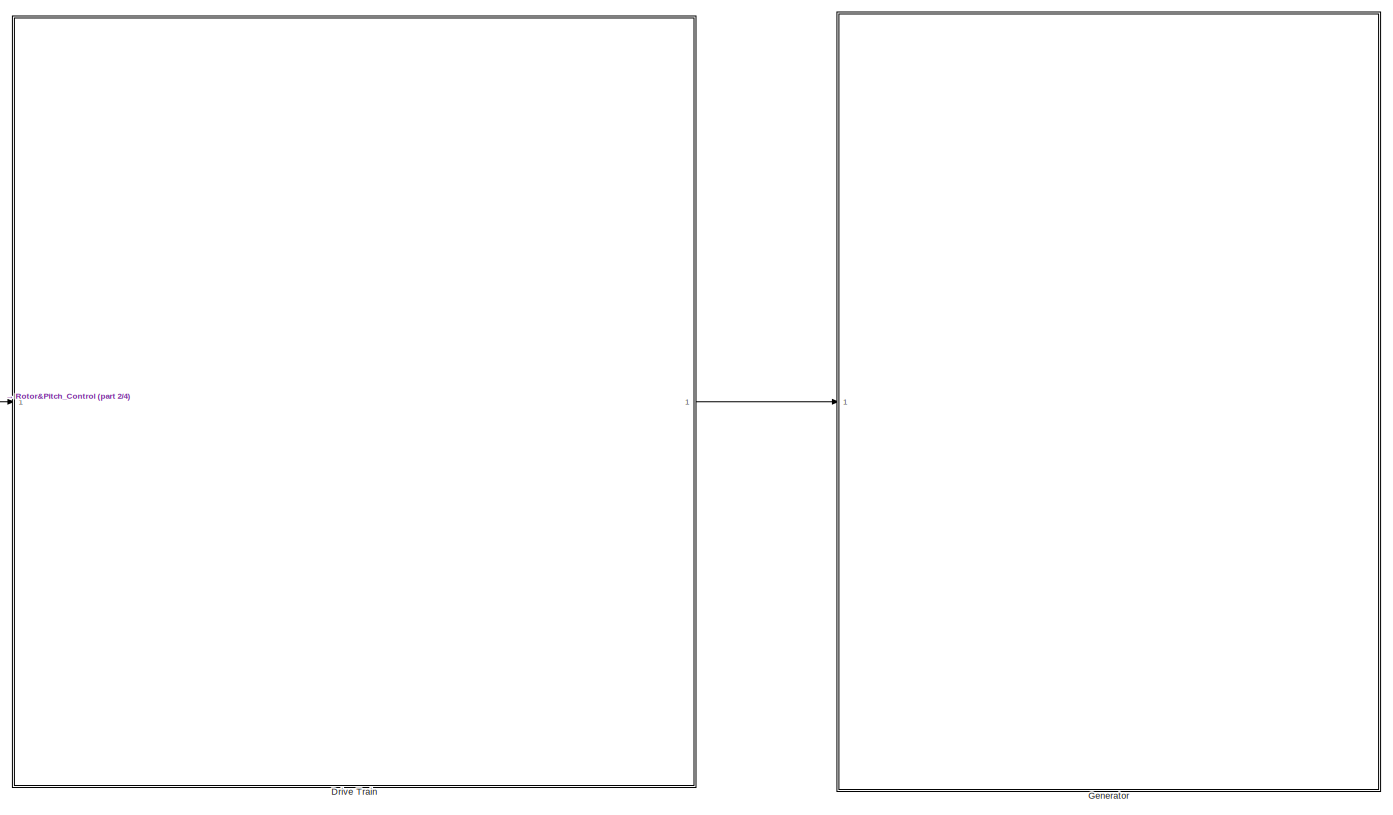
[diagram: root canvas - part 1/4, top right region]
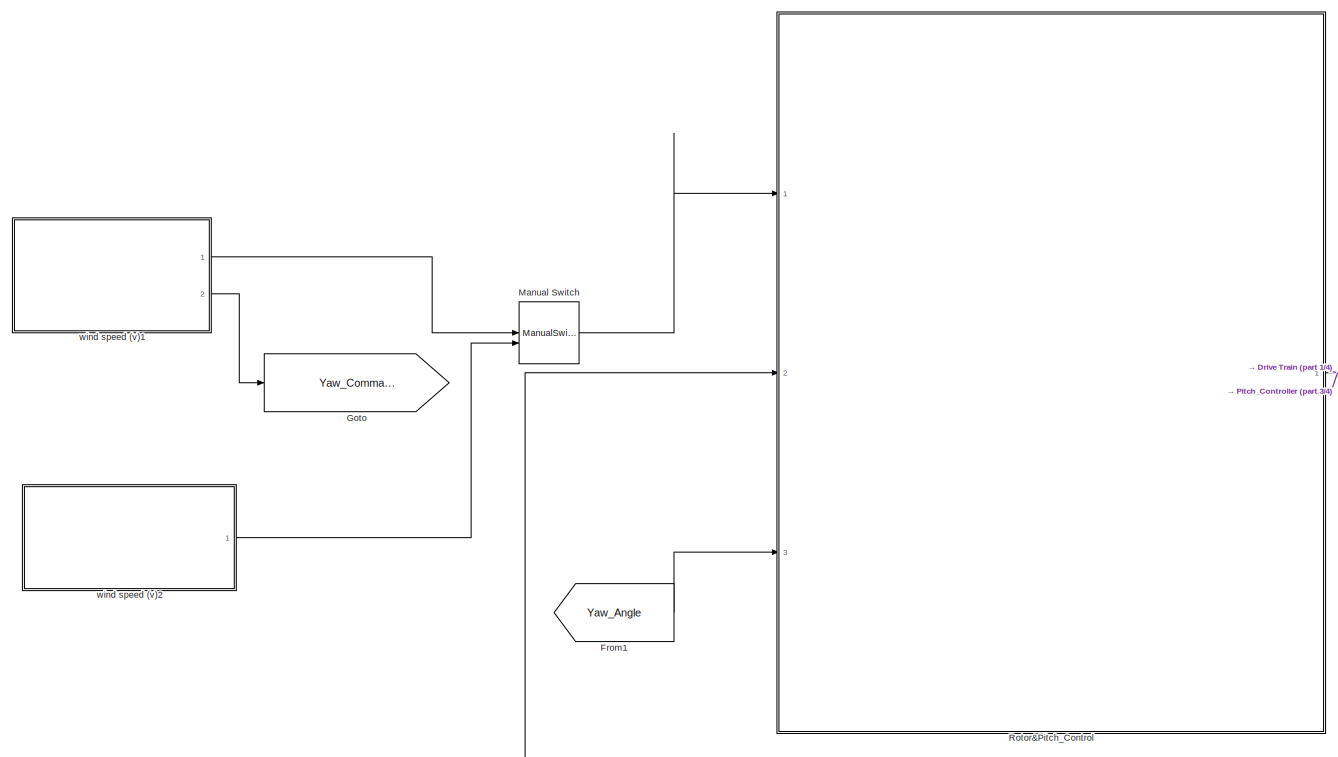
[diagram: root canvas - part 2/4, top left region]
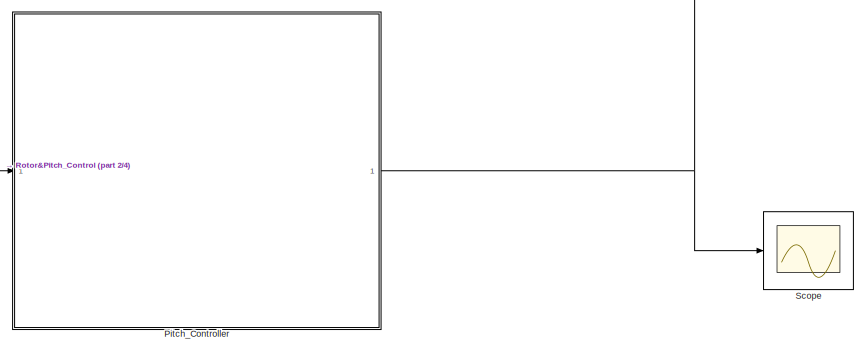
[diagram: root canvas - part 3/4, bottom left region]
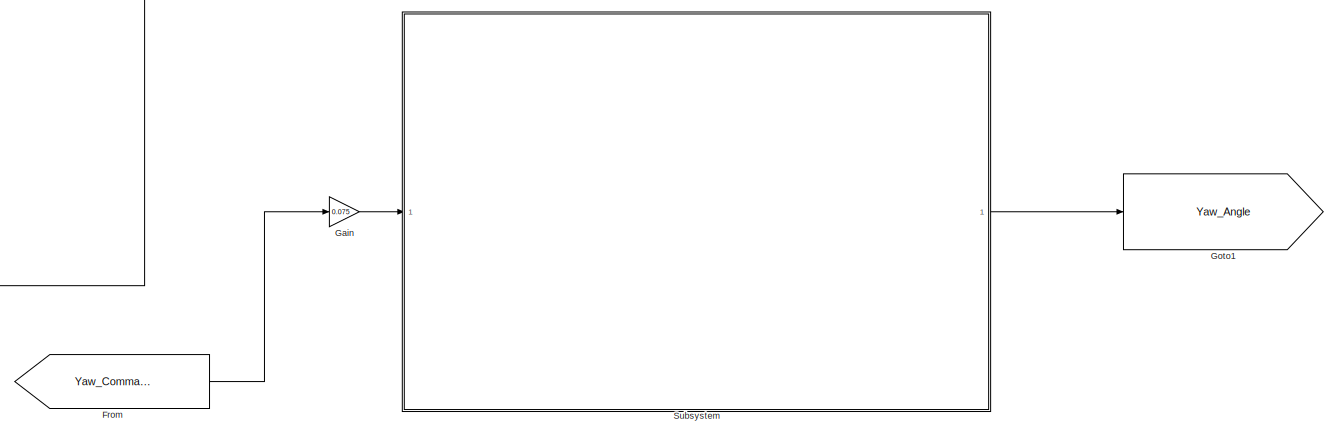
[diagram: root canvas - part 4/4, bottom right region]
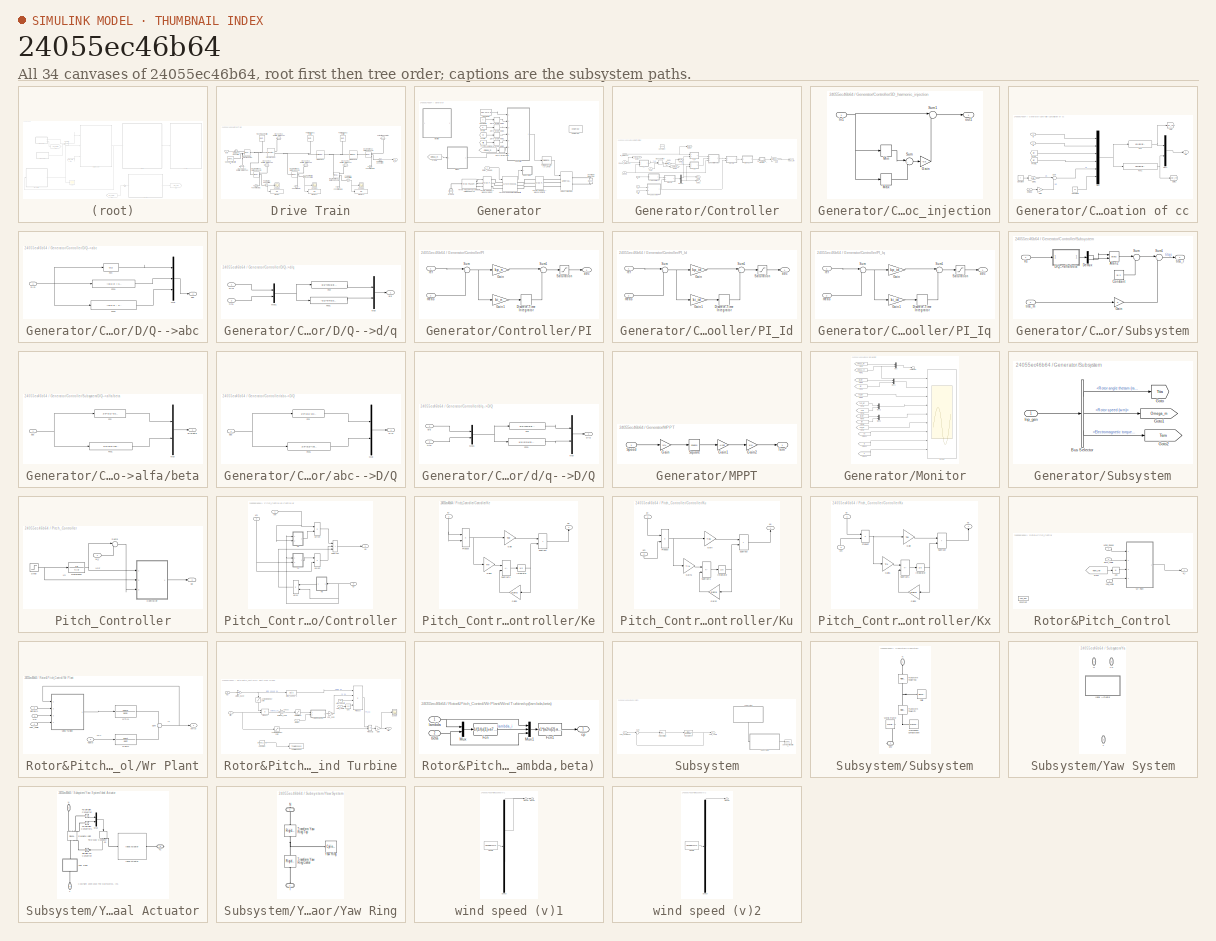
[diagram: thumbnail index - all 34 canvases of the model, root first then tree order]
MODEL slx_24055ec46b64
KIND model
CONFIG AbsTol = auto
CONFIG EnableMultiTasking = off
CONFIG FixedStep = auto
CONFIG MaxStep = auto
CONFIG MinStep = auto
CONFIG RelTol = 1e-3
CONFIG SampleTimeConstraint = Unconstrained
CONFIG Solver = ode45
CONFIG SolverName = ode45
CONFIG StartTime = 0.0
CONFIG StopTime = 10
WORKSPACE source: mxarray member
WORKSPACE Tw: Simulink.Parameter (value not decoded)
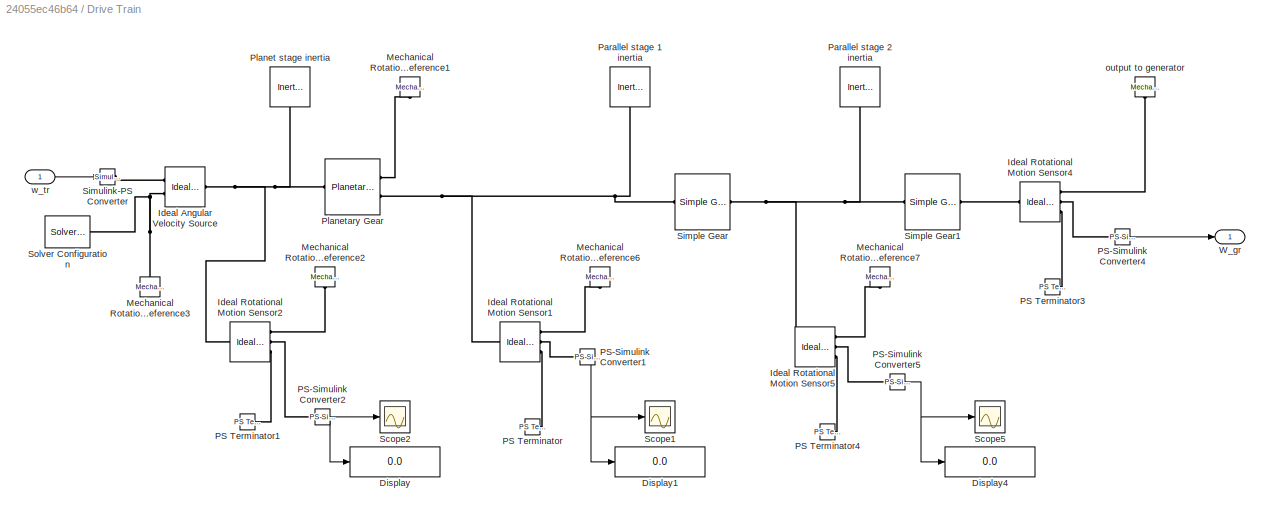
BLOCK [SubSystem] Drive Train
  Ports = [1, 1]
  RequestExecContextInheritance = off
BLOCK [Display] Drive Train/Display
  Decimation = 1
  Ports = [1]
BLOCK [Display] Drive Train/Display1
  Decimation = 1
  Ports = [1]
BLOCK [Display] Drive Train/Display4
  Decimation = 1
  Ports = [1]
BLOCK [Reference] Drive Train/Ideal Angular Velocity Source  REF=fl_lib/Mechanical/Mechanical Sources/Ideal Angular
Velocity Source
  NameLocation = top
  Ports = [0, 0, 0, 0, 0, 1, 2]
  SourceBlock = fl_lib/Mechanical/Mechanical Sources/Ideal Angular\nVelocity Source
  SourceProductBaseCode = SS
  SourceType = Ideal Angular\nVelocity Source
BLOCK [Reference] Drive Train/Ideal Rotational Motion Sensor1  REF=fl_lib/Mechanical/Mechanical Sensors/Ideal Rotational
Motion Sensor
  Ports = [0, 0, 0, 0, 0, 1, 3]
  SourceBlock = fl_lib/Mechanical/Mechanical Sensors/Ideal Rotational\nMotion Sensor
  SourceProductBaseCode = SS
  SourceType = Ideal Rotational\nMotion Sensor
BLOCK [Reference] Drive Train/Ideal Rotational Motion Sensor2  REF=fl_lib/Mechanical/Mechanical Sensors/Ideal Rotational
Motion Sensor
  Ports = [0, 0, 0, 0, 0, 1, 3]
  SourceBlock = fl_lib/Mechanical/Mechanical Sensors/Ideal Rotational\nMotion Sensor
  SourceProductBaseCode = SS
  SourceType = Ideal Rotational\nMotion Sensor
BLOCK [Reference] Drive Train/Ideal Rotational Motion Sensor4  REF=fl_lib/Mechanical/Mechanical Sensors/Ideal Rotational
Motion Sensor
  Ports = [0, 0, 0, 0, 0, 1, 3]
  SourceBlock = fl_lib/Mechanical/Mechanical Sensors/Ideal Rotational\nMotion Sensor
  SourceProductBaseCode = SS
  SourceType = Ideal Rotational\nMotion Sensor
BLOCK [Reference] Drive Train/Ideal Rotational Motion Sensor5  REF=fl_lib/Mechanical/Mechanical Sensors/Ideal Rotational
Motion Sensor
  Ports = [0, 0, 0, 0, 0, 1, 3]
  SourceBlock = fl_lib/Mechanical/Mechanical Sensors/Ideal Rotational\nMotion Sensor
  SourceProductBaseCode = SS
  SourceType = Ideal Rotational\nMotion Sensor
BLOCK [Reference] Drive Train/Mechanical Rotational Reference1  REF=fl_lib/Mechanical/Rotational Elements/Mechanical
Rotational Reference
  NameLocation = left
  Ports = [0, 0, 0, 0, 0, 1]
  SourceBlock = fl_lib/Mechanical/Rotational Elements/Mechanical\nRotational Reference
  SourceProductBaseCode = SS
  SourceType = Mechanical\nRotational Reference
BLOCK [Reference] Drive Train/Mechanical Rotational Reference2  REF=fl_lib/Mechanical/Rotational Elements/Mechanical
Rotational Reference
  NameLocation = left
  Ports = [0, 0, 0, 0, 0, 1]
  SourceBlock = fl_lib/Mechanical/Rotational Elements/Mechanical\nRotational Reference
  SourceProductBaseCode = SS
  SourceType = Mechanical\nRotational Reference
BLOCK [Reference] Drive Train/Mechanical Rotational Reference3  REF=fl_lib/Mechanical/Rotational Elements/Mechanical
Rotational Reference
  NameLocation = right
  Ports = [0, 0, 0, 0, 0, 1]
  SourceBlock = fl_lib/Mechanical/Rotational Elements/Mechanical\nRotational Reference
  SourceProductBaseCode = SS
  SourceType = Mechanical\nRotational Reference
BLOCK [Reference] Drive Train/Mechanical Rotational Reference6  REF=fl_lib/Mechanical/Rotational Elements/Mechanical
Rotational Reference
  NameLocation = left
  Ports = [0, 0, 0, 0, 0, 1]
  SourceBlock = fl_lib/Mechanical/Rotational Elements/Mechanical\nRotational Reference
  SourceProductBaseCode = SS
  SourceType = Mechanical\nRotational Reference
BLOCK [Reference] Drive Train/Mechanical Rotational Reference7  REF=fl_lib/Mechanical/Rotational Elements/Mechanical
Rotational Reference
  NameLocation = left
  Ports = [0, 0, 0, 0, 0, 1]
  SourceBlock = fl_lib/Mechanical/Rotational Elements/Mechanical\nRotational Reference
  SourceProductBaseCode = SS
  SourceType = Mechanical\nRotational Reference
BLOCK [Reference] Drive Train/PS Terminator  REF=fl_lib/Physical Signals/Sinks/PS Terminator
  NameLocation = top
  Ports = [0, 0, 0, 0, 0, 1]
  SourceBlock = fl_lib/Physical Signals/Sinks/PS Terminator
  SourceProductBaseCode = SS
  SourceType = PS Terminator
BLOCK [Reference] Drive Train/PS Terminator1  REF=fl_lib/Physical Signals/Sinks/PS Terminator
  NameLocation = top
  Ports = [0, 0, 0, 0, 0, 1]
  SourceBlock = fl_lib/Physical Signals/Sinks/PS Terminator
  SourceProductBaseCode = SS
  SourceType = PS Terminator
BLOCK [Reference] Drive Train/PS Terminator3  REF=fl_lib/Physical Signals/Sinks/PS Terminator
  NameLocation = top
  Ports = [0, 0, 0, 0, 0, 1]
  SourceBlock = fl_lib/Physical Signals/Sinks/PS Terminator
  SourceProductBaseCode = SS
  SourceType = PS Terminator
BLOCK [Reference] Drive Train/PS Terminator4  REF=fl_lib/Physical Signals/Sinks/PS Terminator
  NameLocation = top
  Ports = [0, 0, 0, 0, 0, 1]
  SourceBlock = fl_lib/Physical Signals/Sinks/PS Terminator
  SourceProductBaseCode = SS
  SourceType = PS Terminator
BLOCK [Reference] Drive Train/PS-Simulink Converter1  REF=nesl_utility/PS-Simulink
Converter
  Ports = [0, 1, 0, 0, 0, 1]
  SourceBlock = nesl_utility/PS-Simulink\nConverter
  SourceProductBaseCode = SS
  SourceType = PS-Simulink\nConverter
BLOCK [Reference] Drive Train/PS-Simulink Converter2  REF=nesl_utility/PS-Simulink
Converter
  Ports = [0, 1, 0, 0, 0, 1]
  SourceBlock = nesl_utility/PS-Simulink\nConverter
  SourceProductBaseCode = SS
  SourceType = PS-Simulink\nConverter
BLOCK [Reference] Drive Train/PS-Simulink Converter4  REF=nesl_utility/PS-Simulink
Converter
  Ports = [0, 1, 0, 0, 0, 1]
  SourceBlock = nesl_utility/PS-Simulink\nConverter
  SourceProductBaseCode = SS
  SourceType = PS-Simulink\nConverter
BLOCK [Reference] Drive Train/PS-Simulink Converter5  REF=nesl_utility/PS-Simulink
Converter
  Ports = [0, 1, 0, 0, 0, 1]
  SourceBlock = nesl_utility/PS-Simulink\nConverter
  SourceProductBaseCode = SS
  SourceType = PS-Simulink\nConverter
BLOCK [Reference] Drive Train/Parallel stage 1 inertia  REF=fl_lib/Mechanical/Rotational Elements/Inertia
  NameLocation = left
  Ports = [0, 0, 0, 0, 0, 1]
  SourceBlock = fl_lib/Mechanical/Rotational Elements/Inertia
  SourceProductBaseCode = SS
  SourceType = Inertia
BLOCK [Reference] Drive Train/Parallel stage 2 inertia  REF=fl_lib/Mechanical/Rotational Elements/Inertia
  NameLocation = left
  Ports = [0, 0, 0, 0, 0, 1]
  SourceBlock = fl_lib/Mechanical/Rotational Elements/Inertia
  SourceProductBaseCode = SS
  SourceType = Inertia
BLOCK [Reference] Drive Train/Planet stage inertia  REF=fl_lib/Mechanical/Rotational Elements/Inertia
  NameLocation = left
  Ports = [0, 0, 0, 0, 0, 1]
  SourceBlock = fl_lib/Mechanical/Rotational Elements/Inertia
  SourceProductBaseCode = SS
  SourceType = Inertia
BLOCK [Reference] Drive Train/Planetary Gear  REF=sdl_lib/Gears/Planetary Gear
  Ports = [0, 0, 0, 0, 0, 1, 2]
  SourceBlock = sdl_lib/Gears/Planetary Gear
  SourceProductBaseCode = LD
  SourceType = Planetary Gear
BLOCK [Scope] Drive Train/Scope1
  Floating = off
  NumInputPorts = 1
  Ports = [1]
  ScopeSpecificationString = Simulink.scopes.TimeScopeBlockCfg('CurrentConfiguration', extmgr.ConfigurationSet(extmgr.Configuration('Core','General UI',true),extmgr.Configuration('Core','Source UI',true),extmgr.Configuration('Sources','WiredSimulink',true,'DataLoggingVariableName','ScopeData1'),extmgr.Configuration('Visuals','Time Domain',true,'SerializedDisplays',{struct('MinYLimReal','77.528','MaxYLimReal','277.528','YLabel...<+1375ch>
BLOCK [Scope] Drive Train/Scope2
  Floating = off
  NumInputPorts = 1
  Ports = [1]
  ScopeSpecificationString = Simulink.scopes.TimeScopeBlockCfg('CurrentConfiguration', extmgr.ConfigurationSet(extmgr.Configuration('Core','General UI',true),extmgr.Configuration('Core','Source UI',true),extmgr.Configuration('Sources','WiredSimulink',true,'DataLoggingVariableName','ScopeData2'),extmgr.Configuration('Visuals','Time Domain',true,'SerializedDisplays',{struct('MinYLimReal','0.56','MaxYLimReal','2.56','YLabelReal'...<+1355ch>
BLOCK [Scope] Drive Train/Scope5
  Floating = off
  NumInputPorts = 1
  Ports = [1]
  ScopeSpecificationString = Simulink.scopes.TimeScopeBlockCfg('CurrentConfiguration', extmgr.ConfigurationSet(extmgr.Configuration('Core','General UI',true),extmgr.Configuration('Core','Source UI',true),extmgr.Configuration('Sources','WiredSimulink',true,'DataLoggingVariableName','ScopeData3'),extmgr.Configuration('Visuals','Time Domain',true,'SerializedDisplays',{struct('MinYLimReal','77.528','MaxYLimReal','277.528','YLabel...<+1375ch>
BLOCK [Reference] Drive Train/Simple Gear  REF=sdl_lib/Gears/Simple Gear
  Ports = [0, 0, 0, 0, 0, 1, 1]
  SourceBlock = sdl_lib/Gears/Simple Gear
  SourceProductBaseCode = LD
  SourceType = Simple Gear
BLOCK [Reference] Drive Train/Simple Gear1  REF=sdl_lib/Gears/Simple Gear
  Ports = [0, 0, 0, 0, 0, 1, 1]
  SourceBlock = sdl_lib/Gears/Simple Gear
  SourceProductBaseCode = LD
  SourceType = Simple Gear
BLOCK [Reference] Drive Train/Simulink-PS Converter  REF=nesl_utility/Simulink-PS
Converter
  Ports = [1, 0, 0, 0, 0, 0, 1]
  SourceBlock = nesl_utility/Simulink-PS\nConverter
  SourceProductBaseCode = SS
  SourceType = Simulink-PS\nConverter
BLOCK [Reference] Drive Train/Solver Configuration  REF=nesl_utility/Solver
Configuration
  Ports = [0, 0, 0, 0, 0, 0, 1]
  SourceBlock = nesl_utility/Solver\nConfiguration
  SourceProductBaseCode = SS
  SourceType = Solver\nConfiguration
BLOCK [Outport] Drive Train/W_gr
BLOCK [Reference] Drive Train/output to generator  REF=fl_lib/Mechanical/Rotational Elements/Mechanical
Rotational Reference
  NameLocation = left
  Ports = [0, 0, 0, 0, 0, 1]
  SourceBlock = fl_lib/Mechanical/Rotational Elements/Mechanical\nRotational Reference
  SourceProductBaseCode = SS
  SourceType = Mechanical\nRotational Reference
BLOCK [Inport] Drive Train/w_tr
BLOCK [From] From
  GotoTag = Yaw_Command
  TagVisibility = global
BLOCK [From] From1
  GotoTag = Yaw_Angle
  TagVisibility = global
BLOCK [Gain] Gain
  Gain = 0.075
BLOCK [SubSystem] Generator
  Ports = [1]
  RequestExecContextInheritance = off
BLOCK [Reference] Generator/Asynchronous Machine SI Units  REF=powerlib/Machines/Asynchronous Machine
SI Units
  Ports = [1, 1, 0, 0, 0, 3, 3]
  SourceBlock = powerlib/Machines/Asynchronous Machine\nSI Units
  SourceProductBaseCode = PS
  SourceType = Asynchronous Machine
BLOCK [Constant] Generator/Constant2
  Value = 157.11*1.2
BLOCK [Constant] Generator/Constant3
  Value = 0
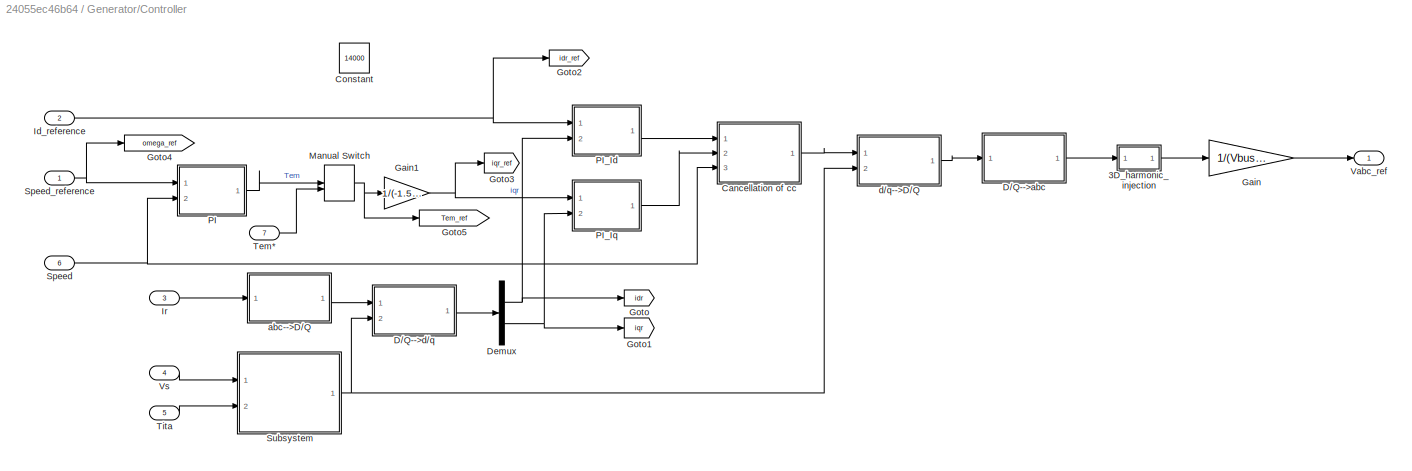
BLOCK [SubSystem] Generator/Controller
  Ports = [7, 1]
  RequestExecContextInheritance = off
BLOCK [SubSystem] Generator/Controller/3D_harmonic_injection
  Ports = [1, 1]
  RequestExecContextInheritance = off
BLOCK [Gain] Generator/Controller/3D_harmonic_injection/Gain
  Gain = -0.5
BLOCK [MinMax] Generator/Controller/3D_harmonic_injection/Max
  Function = max
  Ports = [1, 1]
BLOCK [MinMax] Generator/Controller/3D_harmonic_injection/Min
  Ports = [1, 1]
BLOCK [Sum] Generator/Controller/3D_harmonic_injection/Sum
  Inputs = |++
  Ports = [2, 1]
BLOCK [Sum] Generator/Controller/3D_harmonic_injection/Sum1
  Inputs = |++
  Ports = [2, 1]
BLOCK [Inport] Generator/Controller/3D_harmonic_injection/ln1
BLOCK [Outport] Generator/Controller/3D_harmonic_injection/out1
BLOCK [SubSystem] Generator/Controller/Cancellation of cc
  Ports = [3, 1]
  RequestExecContextInheritance = off
BLOCK [Constant] Generator/Controller/Cancellation of cc/Constant
  Value = f
BLOCK [Constant] Generator/Controller/Cancellation of cc/Constant1
  Value = Fs
BLOCK [Fcn] Generator/Controller/Cancellation of cc/Fcn
  Expr = u[1]-u[5]*sigma*Lr*u[4]
BLOCK [Fcn] Generator/Controller/Cancellation of cc/Fcn1
  Expr = u[2]+u[5]*sigma*Lr*u[3] + u[5]*(Lm/Ls)*u[6]
BLOCK [From] Generator/Controller/Cancellation of cc/From
  GotoTag = idr
  TagVisibility = global
BLOCK [From] Generator/Controller/Cancellation of cc/From1
  GotoTag = iqr
  TagVisibility = global
BLOCK [Gain] Generator/Controller/Cancellation of cc/Gain
  Gain = p
BLOCK [Gain] Generator/Controller/Cancellation of cc/Gain1
  Gain = 2*pi
BLOCK [Goto] Generator/Controller/Cancellation of cc/Goto
  GotoTag = vdr_ref
  TagVisibility = global
BLOCK [Goto] Generator/Controller/Cancellation of cc/Goto1
  GotoTag = vqr_ref
  TagVisibility = global
BLOCK [Inport] Generator/Controller/Cancellation of cc/Id
BLOCK [Inport] Generator/Controller/Cancellation of cc/Iq
  Port = 2
BLOCK [Mux] Generator/Controller/Cancellation of cc/Mux
  DisplayOption = bar
  Inputs = 6
  Ports = [6, 1]
BLOCK [Mux] Generator/Controller/Cancellation of cc/Mux1
  DisplayOption = bar
  Inputs = 2
  Ports = [2, 1]
BLOCK [Sum] Generator/Controller/Cancellation of cc/Sum
  Inputs = |+-
  Ports = [2, 1]
BLOCK [Outport] Generator/Controller/Cancellation of cc/d//q
BLOCK [Inport] Generator/Controller/Cancellation of cc/omega
  Port = 3
BLOCK [Constant] Generator/Controller/Constant
  Commented = on
  Value = 14000
BLOCK [SubSystem] Generator/Controller/D//Q-->abc
  Ports = [1, 1]
  RequestExecContextInheritance = off
BLOCK [Inport] Generator/Controller/D//Q-->abc/D//Q
BLOCK [Fcn] Generator/Controller/D//Q-->abc/Fcn
  Expr = u[1]
BLOCK [Fcn] Generator/Controller/D//Q-->abc/Fcn1
  Expr = -(u[1]/2) + u[2]*(sqrt(3)/2)
BLOCK [Fcn] Generator/Controller/D//Q-->abc/Fcn2
  Expr = -(u[1]/2) - u[2]*(sqrt(3)/2)
BLOCK [Mux] Generator/Controller/D//Q-->abc/Mux
  DisplayOption = bar
  Inputs = 3
  Ports = [3, 1]
BLOCK [Outport] Generator/Controller/D//Q-->abc/abc
BLOCK [SubSystem] Generator/Controller/D//Q-->d//q
  Ports = [2, 1]
  RequestExecContextInheritance = off
BLOCK [Inport] Generator/Controller/D//Q-->d//q/D//Q
BLOCK [Fcn] Generator/Controller/D//Q-->d//q/Fcn
  Expr = u[1]*cos(u[3])+u[2]*sin(u[3])
BLOCK [Fcn] Generator/Controller/D//Q-->d//q/Fcn1
  Expr = -u[1]*sin(u[3]) + u[2]*cos(u[3])
BLOCK [Mux] Generator/Controller/D//Q-->d//q/Mux
  DisplayOption = bar
  Inputs = 2
  Ports = [2, 1]
BLOCK [Mux] Generator/Controller/D//Q-->d//q/Mux1
  DisplayOption = bar
  Inputs = 2
  Ports = [2, 1]
BLOCK [Outport] Generator/Controller/D//Q-->d//q/d//q
BLOCK [Inport] Generator/Controller/D//Q-->d//q/tita
  Port = 2
BLOCK [Demux] Generator/Controller/Demux
  Outputs = 2
  Ports = [1, 2]
BLOCK [Gain] Generator/Controller/Gain
  Gain = 1/(Vbus/2)
BLOCK [Gain] Generator/Controller/Gain1
  Gain = 1/(-1.5*p*Lm/Ls*Fs)
BLOCK [Goto] Generator/Controller/Goto
  GotoTag = idr
  TagVisibility = global
BLOCK [Goto] Generator/Controller/Goto1
  GotoTag = iqr
  TagVisibility = global
BLOCK [Goto] Generator/Controller/Goto2
  GotoTag = idr_ref
  TagVisibility = global
BLOCK [Goto] Generator/Controller/Goto3
  GotoTag = iqr_ref
  TagVisibility = global
BLOCK [Goto] Generator/Controller/Goto4
  GotoTag = omega_ref
  TagVisibility = global
BLOCK [Goto] Generator/Controller/Goto5
  GotoTag = Tem_ref
  TagVisibility = global
BLOCK [Inport] Generator/Controller/Id_reference
  NameLocation = left
  Port = 2
BLOCK [Inport] Generator/Controller/Ir
  Port = 3
BLOCK [ManualSwitch] Generator/Controller/Manual Switch
  CurrentSetting = 0
BLOCK [SubSystem] Generator/Controller/PI
  Ports = [2, 1]
  RequestExecContextInheritance = off
BLOCK [DiscreteIntegrator] Generator/Controller/PI/Discrete-Time Integrator
  ICPrevOutput = DiscIntNeverNeededParam
  ICPrevScaledInput = DiscIntNeverNeededParam
  InitialConditionSetting = Auto
  LimitOutput = on
  LowerSaturationLimit = -Tem
  Ports = [1, 1]
  SampleTime = 1/fsw
  UpperSaturationLimit = Tem
BLOCK [Gain] Generator/Controller/PI/Gain
  Gain = kp_n
BLOCK [Gain] Generator/Controller/PI/Gain1
  Gain = ki_n
BLOCK [Saturate] Generator/Controller/PI/Saturation
  LowerLimit = -Tem
  UpperLimit = Tem
BLOCK [Sum] Generator/Controller/PI/Sum
  Inputs = |+-
  Ports = [2, 1]
BLOCK [Sum] Generator/Controller/PI/Sum1
  Inputs = |++
  Ports = [2, 1]
BLOCK [Outport] Generator/Controller/PI/abc
BLOCK [Inport] Generator/Controller/PI/meas
  Port = 2
BLOCK [Inport] Generator/Controller/PI/ref
BLOCK [SubSystem] Generator/Controller/PI_Id
  Ports = [2, 1]
  RequestExecContextInheritance = off
BLOCK [DiscreteIntegrator] Generator/Controller/PI_Id/Discrete-Time Integrator
  ICPrevOutput = DiscIntNeverNeededParam
  ICPrevScaledInput = DiscIntNeverNeededParam
  InitialConditionSetting = Auto
  LimitOutput = on
  LowerSaturationLimit = -Vbus/sqrt(3)
  Ports = [1, 1]
  SampleTime = 1/fsw
  UpperSaturationLimit = Vbus/sqrt(3)
BLOCK [Gain] Generator/Controller/PI_Id/Gain
  Gain = kp_id
BLOCK [Gain] Generator/Controller/PI_Id/Gain1
  Gain = ki_id
BLOCK [Saturate] Generator/Controller/PI_Id/Saturation
  LowerLimit = -Vbus/sqrt(3)
  UpperLimit = Vbus/sqrt(3)
BLOCK [Sum] Generator/Controller/PI_Id/Sum
  Inputs = |+-
  Ports = [2, 1]
BLOCK [Sum] Generator/Controller/PI_Id/Sum1
  Inputs = |++
  Ports = [2, 1]
BLOCK [Outport] Generator/Controller/PI_Id/abc
BLOCK [Inport] Generator/Controller/PI_Id/meas
  Port = 2
BLOCK [Inport] Generator/Controller/PI_Id/ref
BLOCK [SubSystem] Generator/Controller/PI_Iq
  Ports = [2, 1]
  RequestExecContextInheritance = off
BLOCK [DiscreteIntegrator] Generator/Controller/PI_Iq/Discrete-Time Integrator
  ICPrevOutput = DiscIntNeverNeededParam
  ICPrevScaledInput = DiscIntNeverNeededParam
  InitialConditionSetting = Auto
  LimitOutput = on
  LowerSaturationLimit = -Vbus/sqrt(3)
  Ports = [1, 1]
  SampleTime = 1/fsw
  UpperSaturationLimit = Vbus/sqrt(3)
BLOCK [Gain] Generator/Controller/PI_Iq/Gain
  Gain = kp_id
BLOCK [Gain] Generator/Controller/PI_Iq/Gain1
  Gain = ki_id
BLOCK [Saturate] Generator/Controller/PI_Iq/Saturation
  LowerLimit = -Vbus/sqrt(3)
  UpperLimit = Vbus/sqrt(3)
BLOCK [Sum] Generator/Controller/PI_Iq/Sum
  Inputs = |+-
  Ports = [2, 1]
BLOCK [Sum] Generator/Controller/PI_Iq/Sum1
  Inputs = |++
  Ports = [2, 1]
BLOCK [Outport] Generator/Controller/PI_Iq/abc
BLOCK [Inport] Generator/Controller/PI_Iq/meas
  Port = 2
BLOCK [Inport] Generator/Controller/PI_Iq/ref
BLOCK [Inport] Generator/Controller/Speed
  Port = 6
BLOCK [Inport] Generator/Controller/Speed_reference
BLOCK [SubSystem] Generator/Controller/Subsystem
  Ports = [2, 1]
  RequestExecContextInheritance = off
BLOCK [Trigonometry] Generator/Controller/Subsystem/Atan2
  Operator = atan2
  Ports = [2, 1]
BLOCK [Constant] Generator/Controller/Subsystem/Constant
  Value = pi/2
BLOCK [SubSystem] Generator/Controller/Subsystem/D//Q-->alfa//beta
  Ports = [1, 1]
  RequestExecContextInheritance = off
BLOCK [Fcn] Generator/Controller/Subsystem/D//Q-->alfa//beta/Fcn
  Expr = 2/3*(u[1]-u[2]/2-u[3]/2)
BLOCK [Fcn] Generator/Controller/Subsystem/D//Q-->alfa//beta/Fcn1
  Expr = 2/3*(u[2]*(sqrt(3)/2)-u[3]*(sqrt(3)/2))
BLOCK [Mux] Generator/Controller/Subsystem/D//Q-->alfa//beta/Mux
  DisplayOption = bar
  Inputs = 2
  Ports = [2, 1]
BLOCK [Inport] Generator/Controller/Subsystem/D//Q-->alfa//beta/abc
BLOCK [Outport] Generator/Controller/Subsystem/D//Q-->alfa//beta/alfa//beta
BLOCK [Demux] Generator/Controller/Subsystem/Demux
  Outputs = 2
  Ports = [1, 2]
BLOCK [Gain] Generator/Controller/Subsystem/Gain
  Gain = p
BLOCK [Sum] Generator/Controller/Subsystem/Sum
  Inputs = |+-
  Ports = [2, 1]
BLOCK [Sum] Generator/Controller/Subsystem/Sum1
  Inputs = |+-
  Ports = [2, 1]
BLOCK [Inport] Generator/Controller/Subsystem/Vs
BLOCK [Inport] Generator/Controller/Subsystem/tita_m
  Port = 2
BLOCK [Outport] Generator/Controller/Subsystem/tita_r
BLOCK [Inport] Generator/Controller/Tem*
  Port = 7
BLOCK [Inport] Generator/Controller/Tita
  Port = 5
BLOCK [Outport] Generator/Controller/Vabc_ref
BLOCK [Inport] Generator/Controller/Vs
  Port = 4
BLOCK [SubSystem] Generator/Controller/abc-->D//Q
  Ports = [1, 1]
  RequestExecContextInheritance = off
BLOCK [Outport] Generator/Controller/abc-->D//Q/D//Q
BLOCK [Fcn] Generator/Controller/abc-->D//Q/Fcn
  Expr = 2/3*(u[1]-u[2]/2-u[3]/2)
BLOCK [Fcn] Generator/Controller/abc-->D//Q/Fcn1
  Expr = 2/3*(u[2]*(sqrt(3)/2)-u[3]*(sqrt(3)/2))
BLOCK [Mux] Generator/Controller/abc-->D//Q/Mux
  DisplayOption = bar
  Inputs = 2
  Ports = [2, 1]
BLOCK [Inport] Generator/Controller/abc-->D//Q/abc
BLOCK [SubSystem] Generator/Controller/d//q-->D//Q
  Ports = [2, 1]
  RequestExecContextInheritance = off
BLOCK [Outport] Generator/Controller/d//q-->D//Q/D//Q
BLOCK [Fcn] Generator/Controller/d//q-->D//Q/Fcn
  Expr = u[1]*cos(u[3])-u[2]*sin(u[3])
BLOCK [Fcn] Generator/Controller/d//q-->D//Q/Fcn1
  Expr = u[1]*sin(u[3])+u[2]*cos(u[3])
BLOCK [Mux] Generator/Controller/d//q-->D//Q/Mux
  DisplayOption = bar
  Inputs = 2
  Ports = [2, 1]
BLOCK [Mux] Generator/Controller/d//q-->D//Q/Mux1
  DisplayOption = bar
  Inputs = 2
  Ports = [2, 1]
BLOCK [Inport] Generator/Controller/d//q-->D//Q/d//q
BLOCK [Inport] Generator/Controller/d//q-->D//Q/tita
  Port = 2
BLOCK [Reference] Generator/DC Voltage Source1  REF=powerlib/Electrical
Sources/DC Voltage Source
  NameLocation = right
  Ports = [0, 0, 0, 0, 0, 1, 1]
  SourceBlock = powerlib/Electrical\nSources/DC Voltage Source
  SourceProductBaseCode = PS
  SourceType = DC Voltage Source
BLOCK [From] Generator/From
  GotoTag = Ir
  TagVisibility = global
BLOCK [From] Generator/From1
  GotoTag = Vs
  TagVisibility = global
BLOCK [From] Generator/From2
  GotoTag = Tita
  TagVisibility = global
BLOCK [From] Generator/From3
  GotoTag = Omega_m
  TagVisibility = global
BLOCK [From] Generator/From4
  GotoTag = Omega_m
  TagVisibility = global
BLOCK [Reference] Generator/Ground  REF=powerlib/Elements/Ground
  NameLocation = right
  Ports = [0, 0, 0, 0, 0, 1]
  SourceBlock = powerlib/Elements/Ground
  SourceProductBaseCode = PS
  SourceType = Ground
BLOCK [SubSystem] Generator/MPPT
  Ports = [1, 1]
  RequestExecContextInheritance = off
BLOCK [Gain] Generator/MPPT/Gain
  Gain = 1/N
BLOCK [Gain] Generator/MPPT/Gain1
  Gain = -Kopt
BLOCK [Gain] Generator/MPPT/Gain2
  Gain = 1/N
BLOCK [Inport] Generator/MPPT/Speed
BLOCK [Math] Generator/MPPT/Square
  Operator = square
  Ports = [1, 1]
BLOCK [Outport] Generator/MPPT/Tem*
BLOCK [SubSystem] Generator/Monitor
  Ports = []
  RequestExecContextInheritance = off
BLOCK [From] Generator/Monitor/From
  GotoTag = omega_ref
  TagVisibility = global
BLOCK [From] Generator/Monitor/From1
  GotoTag = Omega_m
  TagVisibility = global
BLOCK [From] Generator/Monitor/From11
  GotoTag = Vs
  TagVisibility = global
BLOCK [From] Generator/Monitor/From12
  GotoTag = Is
  TagVisibility = global
BLOCK [From] Generator/Monitor/From13
  GotoTag = Ir
  TagVisibility = global
BLOCK [From] Generator/Monitor/From2
  GotoTag = iqr_ref
  TagVisibility = global
BLOCK [From] Generator/Monitor/From3
  GotoTag = iqr
  TagVisibility = global
BLOCK [From] Generator/Monitor/From4
  GotoTag = vdr_ref
  TagVisibility = global
BLOCK [From] Generator/Monitor/From5
  GotoTag = Tem_ref
  TagVisibility = global
BLOCK [From] Generator/Monitor/From6
  GotoTag = Tem
  TagVisibility = global
BLOCK [From] Generator/Monitor/From7
  GotoTag = idr_ref
  TagVisibility = global
BLOCK [From] Generator/Monitor/From8
  GotoTag = idr
  TagVisibility = global
BLOCK [From] Generator/Monitor/From9
  GotoTag = vqr_ref
  TagVisibility = global
BLOCK [Mux] Generator/Monitor/Mux
  DisplayOption = bar
  Inputs = 2
  Ports = [2, 1]
BLOCK [Mux] Generator/Monitor/Mux1
  DisplayOption = bar
  Inputs = 2
  Ports = [2, 1]
BLOCK [Mux] Generator/Monitor/Mux2
  DisplayOption = bar
  Inputs = 2
  Ports = [2, 1]
BLOCK [Mux] Generator/Monitor/Mux3
  DisplayOption = bar
  Inputs = 2
  Ports = [2, 1]
BLOCK [Scope] Generator/Monitor/Scope
  Floating = off
  NumInputPorts = 9
  Ports = [9]
  ScopeSpecificationString = Simulink.scopes.TimeScopeBlockCfg('CurrentConfiguration', extmgr.ConfigurationSet(extmgr.Configuration('Core','General UI',true),extmgr.Configuration('Core','Source UI',true),extmgr.Configuration('Sources','WiredSimulink',true),extmgr.Configuration('Visuals','Time Domain',true,'SerializedDisplays',{struct('MinYLimReal','-25.50688','MaxYLimReal','229.47023','YLabelReal','','MinYLimMag','0.00000','M...<+7022ch>
BLOCK [Terminator] Generator/Monitor/Terminator
BLOCK [Reference] Generator/PWM Generator (2-Level)  REF=powerlib_meascontrol/Pulse & Signal
Generators/PWM Generator
(2-Level)
  Ports = [1, 1]
  SourceBlock = powerlib_meascontrol/Pulse & Signal\nGenerators/PWM Generator\n(2-Level)
  SourceProductBaseCode = PS
  SourceType = PWM Generator (2-Level)
BLOCK [Inport] Generator/Rotor_speed
BLOCK [SubSystem] Generator/Subsystem
  Ports = [1]
  RequestExecContextInheritance = off
BLOCK [BusSelector] Generator/Subsystem/Bus Selector
  OutputSignals = Mechanical.Rotor angle thetam (rad),Mechanical.Rotor speed (wm),Mechanical.Electromagnetic torque Te (N*m)
  Ports = [1, 3]
BLOCK [Goto] Generator/Subsystem/Goto
  GotoTag = Tita
  TagVisibility = global
BLOCK [Goto] Generator/Subsystem/Goto1
  GotoTag = Omega_m
  TagVisibility = global
BLOCK [Goto] Generator/Subsystem/Goto2
  GotoTag = Tem
  TagVisibility = global
BLOCK [Inport] Generator/Subsystem/Inp_gen
BLOCK [Reference] Generator/Three-Phase Programmable Voltage Source  REF=powerlib/Electrical
Sources/Three-Phase
Programmable
Voltage Source
  Ports = [0, 0, 0, 0, 0, 1, 3]
  SourceBlock = powerlib/Electrical\nSources/Three-Phase\nProgrammable\nVoltage Source
  SourceProductBaseCode = PS
  SourceType = Three-Phase Programmable Voltage Source
BLOCK [Reference] Generator/Three-Phase V-I Measurement  REF=powerlib/Measurements/Three-Phase
V-I Measurement
  Ports = [0, 0, 0, 0, 0, 3, 3]
  SourceBlock = powerlib/Measurements/Three-Phase\nV-I Measurement
  SourceProductBaseCode = PS
  SourceType = Three-Phase VI Measurement
BLOCK [Reference] Generator/Three-Phase V-I Measurement1  REF=powerlib/Measurements/Three-Phase
V-I Measurement
  NameLocation = top
  Ports = [0, 0, 0, 0, 0, 3, 3]
  SourceBlock = powerlib/Measurements/Three-Phase\nV-I Measurement
  SourceProductBaseCode = PS
  SourceType = Three-Phase VI Measurement
BLOCK [Reference] Generator/Universal Bridge  REF=powerlib/Power
Electronics/Universal Bridge
  Ports = [1, 0, 0, 0, 0, 3, 2]
  SourceBlock = powerlib/Power\nElectronics/Universal Bridge
  SourceProductBaseCode = PS
  SourceType = Universal Bridge
BLOCK [ZeroOrderHold] Generator/Zero-Order Hold
  SampleTime = 1/fsw
BLOCK [ZeroOrderHold] Generator/Zero-Order Hold1
  SampleTime = 1/fsw
BLOCK [ZeroOrderHold] Generator/Zero-Order Hold2
  SampleTime = 1/fsw
BLOCK [ZeroOrderHold] Generator/Zero-Order Hold3
  SampleTime = 1/fsw
BLOCK [ZeroOrderHold] Generator/Zero-Order Hold4
  SampleTime = 1/fsw
BLOCK [Reference] Generator/powergui  REF=powerlib/powergui
  Ports = []
  Priority = 1
  SourceBlock = powerlib/powergui
  SourceProductBaseCode = PS
  SourceType = PSB option menu block
BLOCK [Goto] Goto
  GotoTag = Yaw_Command
  TagVisibility = global
BLOCK [Goto] Goto1
  GotoTag = Yaw_Angle
  TagVisibility = global
BLOCK [ManualSwitch] Manual Switch
BLOCK [SubSystem] Pitch_Controller
  Ports = [1, 1]
  RequestExecContextInheritance = off
BLOCK [SubSystem] Pitch_Controller/Controller
  Ports = [3, 1]
  RequestExecContextInheritance = off
BLOCK [SubSystem] Pitch_Controller/Controller/Ke
  Ports = [1, 1]
  RequestExecContextInheritance = off
BLOCK [Product] Pitch_Controller/Controller/Ke*ey
  Ports = [2, 1]
BLOCK [Gain] Pitch_Controller/Controller/Ke/Gain
  Gain = Tpe
BLOCK [Gain] Pitch_Controller/Controller/Ke/Gain1
  Gain = Tie
BLOCK [Gain] Pitch_Controller/Controller/Ke/Gain2
  Gain = sigma
BLOCK [Integrator] Pitch_Controller/Controller/Ke/Integrator
  Ports = [1, 1]
BLOCK [Outport] Pitch_Controller/Controller/Ke/Ke
  NameLocation = right
BLOCK [Product] Pitch_Controller/Controller/Ke/Product
  Ports = [2, 1]
BLOCK [Sum] Pitch_Controller/Controller/Ke/Subtract
  IconShape = rectangular
  Ports = [2, 1]
BLOCK [Sum] Pitch_Controller/Controller/Ke/Subtract1
  IconShape = rectangular
  Inputs = +-
  Ports = [2, 1]
BLOCK [Inport] Pitch_Controller/Controller/Ke/ey
  NameLocation = right
BLOCK [SubSystem] Pitch_Controller/Controller/Ku
  Ports = [2, 1]
  RequestExecContextInheritance = off
BLOCK [Product] Pitch_Controller/Controller/Ku*um
  Ports = [2, 1]
BLOCK [Gain] Pitch_Controller/Controller/Ku/Gain
  Gain = Tpu
BLOCK [Gain] Pitch_Controller/Controller/Ku/Gain1
  Gain = Tiu
BLOCK [Gain] Pitch_Controller/Controller/Ku/Gain2
  Gain = sigma
BLOCK [Integrator] Pitch_Controller/Controller/Ku/Integrator
  Ports = [1, 1]
BLOCK [Outport] Pitch_Controller/Controller/Ku/Ku
  NameLocation = right
BLOCK [Product] Pitch_Controller/Controller/Ku/Product
  Ports = [2, 1]
BLOCK [Sum] Pitch_Controller/Controller/Ku/Subtract
  IconShape = rectangular
  Ports = [2, 1]
BLOCK [Sum] Pitch_Controller/Controller/Ku/Subtract1
  IconShape = rectangular
  Inputs = +-
  Ports = [2, 1]
BLOCK [Inport] Pitch_Controller/Controller/Ku/ey
  NameLocation = right
BLOCK [Inport] Pitch_Controller/Controller/Ku/um
  NameLocation = right
  Port = 2
BLOCK [SubSystem] Pitch_Controller/Controller/Kx
  Ports = [2, 1]
  RequestExecContextInheritance = off
BLOCK [Product] Pitch_Controller/Controller/Kx*xm
  Ports = [2, 1]
BLOCK [Gain] Pitch_Controller/Controller/Kx/Gain
  Gain = Tpx
BLOCK [Gain] Pitch_Controller/Controller/Kx/Gain1
  Gain = Tix
BLOCK [Gain] Pitch_Controller/Controller/Kx/Gain2
  Gain = sigma
BLOCK [Integrator] Pitch_Controller/Controller/Kx/Integrator
  Ports = [1, 1]
BLOCK [Outport] Pitch_Controller/Controller/Kx/Kx
  NameLocation = right
BLOCK [Product] Pitch_Controller/Controller/Kx/Product
  Ports = [2, 1]
BLOCK [Sum] Pitch_Controller/Controller/Kx/Subtract
  IconShape = rectangular
  Ports = [2, 1]
BLOCK [Sum] Pitch_Controller/Controller/Kx/Subtract1
  IconShape = rectangular
  Inputs = +-
  Ports = [2, 1]
BLOCK [Inport] Pitch_Controller/Controller/Kx/ey
  NameLocation = right
BLOCK [Inport] Pitch_Controller/Controller/Kx/xm
  NameLocation = left
  Port = 2
BLOCK [Sum] Pitch_Controller/Controller/Subtract
  IconShape = rectangular
  Inputs = +++
  Ports = [3, 1]
BLOCK [Inport] Pitch_Controller/Controller/ey
  Port = 3
BLOCK [Inport] Pitch_Controller/Controller/um
  NameLocation = right
  Port = 2
BLOCK [Outport] Pitch_Controller/Controller/up
BLOCK [Inport] Pitch_Controller/Controller/xm
BLOCK [TransferFcn] Pitch_Controller/Reference
  Denominator = [1 1]
BLOCK [Step] Pitch_Controller/Step
  After = 1.8
  SampleTime = 0
  Time = 0
BLOCK [Sum] Pitch_Controller/Sum3
  Inputs = |+-
  Ports = [2, 1]
BLOCK [Inport] Pitch_Controller/W_r
BLOCK [Outport] Pitch_Controller/up
BLOCK [SubSystem] Rotor&Pitch_Control
  Ports = [3, 1]
  RequestExecContextInheritance = off
BLOCK [Abs] Rotor&Pitch_Control/Abs
  SaturateOnIntegerOverflow = off
BLOCK [Constant] Rotor&Pitch_Control/Constant
  Commented = on
  Value = Tgd_max
BLOCK [From] Rotor&Pitch_Control/From
  GotoTag = Tem_ref
  TagVisibility = global
BLOCK [Inport] Rotor&Pitch_Control/Pitch_Angle
  Port = 2
BLOCK [Inport] Rotor&Pitch_Control/Wind_Speed
BLOCK [SubSystem] Rotor&Pitch_Control/Wr Plant
  Ports = [4, 1]
  RequestExecContextInheritance = off
BLOCK [Inport] Rotor&Pitch_Control/Wr Plant/Betad(s)
  Port = 2
BLOCK [TransferFcn] Rotor&Pitch_Control/Wr Plant/GTg(s)
  Denominator = dent
  Numerator = numt
BLOCK [TransferFcn] Rotor&Pitch_Control/Wr Plant/GTr(s)
  Denominator = denp
  Numerator = nump
BLOCK [Sum] Rotor&Pitch_Control/Wr Plant/Sum
  Ports = [2, 1]
BLOCK [Inport] Rotor&Pitch_Control/Wr Plant/Tgd(s)
  Port = 3
BLOCK [SubSystem] Rotor&Pitch_Control/Wr Plant/Wind Turbine
  AncestorBlock = re_lib/Wind Generation/Wind Turbine
  DialogController = POWERSYS.PowerSysDialog
  Ports = [4, 1]
  RequestExecContextInheritance = off
BLOCK [Gain] Rotor&Pitch_Control/Wr Plant/Wind Turbine/1//cp_nom
  Gain = 1/cp_nom
  OutDataTypeStr = Inherit: Same as input
  ParamDataTypeStr = Inherit: Same as input
  SaturateOnIntegerOverflow = on
BLOCK [Gain] Rotor&Pitch_Control/Wr Plant/Wind Turbine/1//wind_base
  Gain = 1/wind_base
  OutDataTypeStr = Inherit: Same as input
  ParamDataTypeStr = Inherit: Same as input
  SaturateOnIntegerOverflow = on
BLOCK [Constant] Rotor&Pitch_Control/Wr Plant/Wind Turbine/Area*density
  Value = Ad
BLOCK [Saturate] Rotor&Pitch_Control/Wr Plant/Wind Turbine/Avoid division by zero
  LowerLimit = 1e-6
  UpperLimit = 1e6
BLOCK [Saturate] Rotor&Pitch_Control/Wr Plant/Wind Turbine/Avoid division by zero 
  LowerLimit = 1e-6
  NameLocation = left
  UpperLimit = 1e6
BLOCK [Inport] Rotor&Pitch_Control/Wr Plant/Wind Turbine/Beta(s)
  Port = 2
BLOCK [Constant] Rotor&Pitch_Control/Wr Plant/Wind Turbine/Constant
  Value = lambda_nom
BLOCK [Trigonometry] Rotor&Pitch_Control/Wr Plant/Wind Turbine/Cos
  Operator = cos
  Ports = [1, 1]
BLOCK [Gain] Rotor&Pitch_Control/Wr Plant/Wind Turbine/Gain
  Gain = -1
  OutDataTypeStr = Inherit: Same as input
  ParamDataTypeStr = Inherit: Same as input
  SaturateOnIntegerOverflow = on
BLOCK [Product] Rotor&Pitch_Control/Wr Plant/Wind Turbine/Product
  Inputs = /*
  OutDataTypeStr = Inherit: Same as first input
  Ports = [2, 1]
  SaturateOnIntegerOverflow = on
BLOCK [Product] Rotor&Pitch_Control/Wr Plant/Wind Turbine/Product 
  Inputs = 4
  OutDataTypeStr = Inherit: Same as first input
  Ports = [4, 1]
  SaturateOnIntegerOverflow = on
BLOCK [Product] Rotor&Pitch_Control/Wr Plant/Wind Turbine/Product2
  InputSameDT = on
  Inputs = */
  OutDataTypeStr = Inherit: Same as first input
  Ports = [2, 1]
  SaturateOnIntegerOverflow = on
BLOCK [Saturate] Rotor&Pitch_Control/Wr Plant/Wind Turbine/Saturation1
  LowerLimit = 1e-6
  UpperLimit = inf
BLOCK [Scope] Rotor&Pitch_Control/Wr Plant/Wind Turbine/Scope
  Floating = off
  NumInputPorts = 1
  Ports = [1]
  ScopeSpecificationString = Simulink.scopes.TimeScopeBlockCfg('CurrentConfiguration', extmgr.ConfigurationSet(extmgr.Configuration('Core','General UI',true),extmgr.Configuration('Core','Source UI',true),extmgr.Configuration('Sources','WiredSimulink',true,'DataLoggingVariableName','ScopeData1'),extmgr.Configuration('Visuals','Time Domain',true,'SerializedDisplays',{struct('MinYLimReal','-959418093.85955','MaxYLimReal','122504...<+1751ch>
BLOCK [ToWorkspace] Rotor&Pitch_Control/Wr Plant/Wind Turbine/To Workspace
  FixptAsFi = on
  MaxDataPoints = inf
  Ports = [1]
  SampleTime = -1
  SaveFormat = Timeseries
  VariableName = lambda_nom
BLOCK [Outport] Rotor&Pitch_Control/Wr Plant/Wind Turbine/Tr(s)
BLOCK [Inport] Rotor&Pitch_Control/Wr Plant/Wind Turbine/Wr(s)
BLOCK [Inport] Rotor&Pitch_Control/Wr Plant/Wind Turbine/Yaw_Angle
  Port = 4
BLOCK [SubSystem] Rotor&Pitch_Control/Wr Plant/Wind Turbine/cp(lambda,beta)
  Ports = [2, 1]
  RequestExecContextInheritance = off
BLOCK [Fcn] Rotor&Pitch_Control/Wr Plant/Wind Turbine/cp(lambda,beta)/Fcn
  Expr = 1/(1/(u[1]+a7*u[2])-a8/(u[2]^3+1))
BLOCK [Fcn] Rotor&Pitch_Control/Wr Plant/Wind Turbine/cp(lambda,beta)/Fcn1
  Expr = a1*(a2/u[2]-a3*u[3]-a4)*exp(-a5/u[2])+a6*u[1]
BLOCK [Mux] Rotor&Pitch_Control/Wr Plant/Wind Turbine/cp(lambda,beta)/Mux
  DisplayOption = bar
  Inputs = 2
  Ports = [2, 1]
BLOCK [Mux] Rotor&Pitch_Control/Wr Plant/Wind Turbine/cp(lambda,beta)/Mux1
  DisplayOption = bar
  Inputs = 3
  Ports = [3, 1]
BLOCK [Inport] Rotor&Pitch_Control/Wr Plant/Wind Turbine/cp(lambda,beta)/beta
  Port = 2
BLOCK [Outport] Rotor&Pitch_Control/Wr Plant/Wind Turbine/cp(lambda,beta)/cp
BLOCK [Inport] Rotor&Pitch_Control/Wr Plant/Wind Turbine/cp(lambda,beta)/lambda
BLOCK [Gain] Rotor&Pitch_Control/Wr Plant/Wind Turbine/lambda_nom
  Gain = lambda_nom
  OutDataTypeStr = Inherit: Same as input
  ParamDataTypeStr = Inherit: Same as input
  SaturateOnIntegerOverflow = on
BLOCK [Inport] Rotor&Pitch_Control/Wr Plant/Wind Turbine/v(s)
  Port = 3
BLOCK [Fcn] Rotor&Pitch_Control/Wr Plant/Wind Turbine/wind_speed^3
  Expr = u(1)^3
BLOCK [Outport] Rotor&Pitch_Control/Wr Plant/Wr(s)
BLOCK [Inport] Rotor&Pitch_Control/Wr Plant/Yaw_Angle
  Port = 4
BLOCK [Inport] Rotor&Pitch_Control/Wr Plant/v(s)
BLOCK [Inport] Rotor&Pitch_Control/Yaw_Angle
  Port = 3
BLOCK [Outport] Rotor&Pitch_Control/w_r
BLOCK [Scope] Scope
  Floating = off
  NumInputPorts = 1
  Ports = [1]
  ScopeSpecificationString = Simulink.scopes.TimeScopeBlockCfg('CurrentConfiguration', extmgr.ConfigurationSet(extmgr.Configuration('Core','General UI',true),extmgr.Configuration('Core','Source UI',true),extmgr.Configuration('Sources','WiredSimulink',true,'DataLoggingVariableName','ScopeData1'),extmgr.Configuration('Visuals','Time Domain',true,'SerializedDisplays',{struct('MinYLimReal','-82.89879','MaxYLimReal','746.08913','Y...<+1436ch>
BLOCK [SubSystem] Subsystem
  Ports = [1, 1]
  RequestExecContextInheritance = off
BLOCK [Reference] Subsystem/PID Controller  REF=simulink/Continuous/PID Controller
  Ports = [1, 1]
  SourceBlock = simulink/Continuous/PID Controller
  SourceProductBaseCode = SL
  SourceType = PID 1dof
BLOCK [Reference] Subsystem/Solver Configuration  REF=nesl_utility/Solver
Configuration
  Commented = on
  NameLocation = top
  Ports = [0, 0, 0, 0, 0, 0, 1]
  SourceBlock = nesl_utility/Solver\nConfiguration
  SourceProductBaseCode = SS
  SourceType = Solver\nConfiguration
BLOCK [SubSystem] Subsystem/Subsystem
  Commented = on
  Ports = [0, 0, 0, 0, 0, 1, 1]
  RequestExecContextInheritance = off
BLOCK [PMIOPort] Subsystem/Subsystem/Env
  Port = 2
  Side = Right
BLOCK [Reference] Subsystem/Subsystem/Mechanism Configuration  REF=sm_lib/Utilities/Mechanism
Configuration
  Ports = [0, 0, 0, 0, 0, 0, 1]
  SourceBlock = sm_lib/Utilities/Mechanism\nConfiguration
  SourceProductBaseCode = MS
  SourceType = Mechanism\nConfiguration
BLOCK [PMIOPort] Subsystem/Subsystem/N
  NameLocation = left
  Side = Left
BLOCK [Reference] Subsystem/Subsystem/Solid  REF=sm_lib/Body Elements/Revolved Solid
  NameLocation = top
  Ports = [0, 0, 0, 0, 0, 0, 1]
  SourceBlock = sm_lib/Body Elements/Revolved Solid
  SourceProductBaseCode = MS
  SourceType = Revolved Solid
BLOCK [Reference] Subsystem/Subsystem/Transform TowerCtr  REF=sm_lib/Frames and
Transforms/Rigid
Transform
  NameLocation = right
  Ports = [0, 0, 0, 0, 0, 1, 1]
  SourceBlock = sm_lib/Frames and\nTransforms/Rigid\nTransform
  SourceProductBaseCode = MS
  SourceType = Rigid\nTransform
BLOCK [Reference] Subsystem/Subsystem/Transform TowerTop  REF=sm_lib/Frames and
Transforms/Rigid
Transform
  NameLocation = right
  Ports = [0, 0, 0, 0, 0, 1, 1]
  SourceBlock = sm_lib/Frames and\nTransforms/Rigid\nTransform
  SourceProductBaseCode = MS
  SourceType = Rigid\nTransform
BLOCK [Reference] Subsystem/Subsystem/World Frame  REF=sm_lib/Frames and
Transforms/World Frame
  Ports = [0, 0, 0, 0, 0, 0, 1]
  SourceBlock = sm_lib/Frames and\nTransforms/World Frame
  SourceProductBaseCode = MS
  SourceType = World Frame
BLOCK [Sum] Subsystem/Sum
  Inputs = |+-
  Ports = [2, 1]
BLOCK [TransferFcn] Subsystem/Transfer Fcn
  Denominator = [1 18 35]
  Numerator = [35]
BLOCK [SubSystem] Subsystem/Yaw System
  AttributesFormatString = %<ActiveVariant>
  Commented = on
  LabelModeActiveChoice = Ideal_Actuator
  NameLocation = right
  Ports = [0, 0, 0, 0, 0, 1, 2]
  RequestExecContextInheritance = off
  Tag = CustomStyle
  Variant = on
  VariantControlMode = Label
BLOCK [SubSystem] Subsystem/Yaw System/Ideal Actuator
  AncestorBlock = Yaw_System_Lib/Ideal Actuator
  NameLocation = right
  Ports = [0, 0, 0, 0, 0, 1, 2]
  RequestExecContextInheritance = off
  VariantControl = Ideal_Actuator
BLOCK [Reference] Subsystem/Yaw System/Ideal Actuator/Ideal Actuator  REF=Yaw_Actuation_Lib/Ideal Actuator
  Ports = [0, 0, 0, 0, 0, 1, 1]
  SourceBlock = Yaw_Actuation_Lib/Ideal Actuator
BLOCK [Mux] Subsystem/Yaw System/Ideal Actuator/Mux
  DisplayOption = bar
  Inputs = 2
  Ports = [2, 1]
BLOCK [PMIOPort] Subsystem/Yaw System/Ideal Actuator/N
  NameLocation = right
  Side = Right
BLOCK [Reference] Subsystem/Yaw System/Ideal Actuator/PS-Simulink Converter  REF=nesl_utility/PS-Simulink
Converter
  Ports = [0, 1, 0, 0, 0, 1]
  SourceBlock = nesl_utility/PS-Simulink\nConverter
  SourceProductBaseCode = SS
  SourceType = PS-Simulink\nConverter
BLOCK [Reference] Subsystem/Yaw System/Ideal Actuator/PS-Simulink Converter1  REF=nesl_utility/PS-Simulink
Converter
  Ports = [0, 1, 0, 0, 0, 1]
  SourceBlock = nesl_utility/PS-Simulink\nConverter
  SourceProductBaseCode = SS
  SourceType = PS-Simulink\nConverter
BLOCK [Reference] Subsystem/Yaw System/Ideal Actuator/Revolute Joint  REF=sm_lib/Joints/Revolute Joint
  NameLocation = right
  Ports = [0, 0, 0, 0, 0, 2, 3]
  SourceBlock = sm_lib/Joints/Revolute Joint
  SourceProductBaseCode = MS
  SourceType = Revolute Joint
BLOCK [Reference] Subsystem/Yaw System/Ideal Actuator/Simulink-PS Converter  REF=nesl_utility/Simulink-PS
Converter
  NameLocation = top
  Ports = [1, 0, 0, 0, 0, 0, 1]
  SourceBlock = nesl_utility/Simulink-PS\nConverter
  SourceProductBaseCode = SS
  SourceType = Simulink-PS\nConverter
BLOCK [PMIOPort] Subsystem/Yaw System/Ideal Actuator/T
  NameLocation = left
  Port = 2
  Side = Left
BLOCK [TwoWayConnection] Subsystem/Yaw System/Ideal Actuator/Two-Way Connection
  NameLocation = left
  Ports = [1, 1, 0, 0, 0, 0, 1]
BLOCK [PMIOPort] Subsystem/Yaw System/Ideal Actuator/YC
  NameLocation = top
  Port = 3
  Side = Right
BLOCK [SubSystem] Subsystem/Yaw System/Ideal Actuator/Yaw Ring
  NameLocation = right
  Ports = [0, 0, 0, 0, 0, 1, 1]
  RequestExecContextInheritance = off
BLOCK [PMIOPort] Subsystem/Yaw System/Ideal Actuator/Yaw Ring/N
  NameLocation = right
  Side = Right
BLOCK [PMIOPort] Subsystem/Yaw System/Ideal Actuator/Yaw Ring/T
  NameLocation = right
  Port = 2
  Side = Left
BLOCK [Reference] Subsystem/Yaw System/Ideal Actuator/Yaw Ring/Transform Yaw Ring Center  REF=sm_lib/Frames and
Transforms/Rigid
Transform
  NameLocation = right
  Ports = [0, 0, 0, 0, 0, 1, 1]
  SourceBlock = sm_lib/Frames and\nTransforms/Rigid\nTransform
  SourceProductBaseCode = MS
  SourceType = Rigid\nTransform
BLOCK [Reference] Subsystem/Yaw System/Ideal Actuator/Yaw Ring/Transform Yaw Ring Top  REF=sm_lib/Frames and
Transforms/Rigid
Transform
  NameLocation = right
  Ports = [0, 0, 0, 0, 0, 1, 1]
  SourceBlock = sm_lib/Frames and\nTransforms/Rigid\nTransform
  SourceProductBaseCode = MS
  SourceType = Rigid\nTransform
BLOCK [Reference] Subsystem/Yaw System/Ideal Actuator/Yaw Ring/Yaw Ring  REF=sm_lib/Body Elements/Cylindrical Solid
  NameLocation = top
  Ports = [0, 0, 0, 0, 0, 0, 1]
  SourceBlock = sm_lib/Body Elements/Cylindrical Solid
  SourceProductBaseCode = MS
  SourceType = Cylindrical Solid
BLOCK [PMIOPort] Subsystem/Yaw System/N
  NameLocation = right
  Side = Right
BLOCK [PMIOPort] Subsystem/Yaw System/T
  NameLocation = left
  Port = 2
  Side = Left
BLOCK [PMIOPort] Subsystem/Yaw System/YC
  NameLocation = left
  Port = 3
  Side = Right
BLOCK [Outport] Subsystem/Yaw_Angle
BLOCK [Inport] Subsystem/Yaw_Command
BLOCK [SubSystem] wind speed (v)1
  ClipboardFcn = sigbuilder_block('clipboard');
  CloseFcn = sigbuilder_block('close');
  ContinueFcn = sigbuilder_block('continue');
  CopyFcn = sigbuilder_block('copy');
  DeleteFcn = sigbuilder_block('delete');
  LoadFcn = sigbuilder_block('load');
  MaskHideContents = on
  ModelCloseFcn = sigbuilder_block('modelClose');
  NameChangeFcn = sigbuilder_block('namechange');
  OpenFcn = sigbuilder_block('open',[6 0 1012.5 477.75 ]);
  PauseFcn = sigbuilder_block('pause');
  Ports = [0, 2]
  PreSaveFcn = sigbuilder_block('preSave');
  RequestExecContextInheritance = off
  StartFcn = sigbuilder_block('start');
  StopFcn = sigbuilder_block('stop');
  Tag = STV Subsys
BLOCK [Demux] wind speed (v)1/Demux
  DisplayOption = none
  Outputs = 2
  Ports = [1, 2]
  Tag = STV Demux
BLOCK [FromWorkspace] wind speed (v)1/FromWs
  Tag = STV FromWs
  VariableName = tuvar
BLOCK [Outport] wind speed (v)1/Signal 1
  Port = 2
  Tag = STV Outport
BLOCK [Outport] wind speed (v)1/Signal 2
  Tag = STV Outport
BLOCK [SubSystem] wind speed (v)2
  ClipboardFcn = sigbuilder_block('clipboard');
  CloseFcn = sigbuilder_block('close');
  ContinueFcn = sigbuilder_block('continue');
  CopyFcn = sigbuilder_block('copy');
  DeleteFcn = sigbuilder_block('delete');
  LoadFcn = sigbuilder_block('load');
  MaskHideContents = on
  ModelCloseFcn = sigbuilder_block('modelClose');
  NameChangeFcn = sigbuilder_block('namechange');
  OpenFcn = sigbuilder_block('open',[289.8 114 442.2 307.8 ]);
  PauseFcn = sigbuilder_block('pause');
  Ports = [0, 1]
  PreSaveFcn = sigbuilder_block('preSave');
  RequestExecContextInheritance = off
  StartFcn = sigbuilder_block('start');
  StopFcn = sigbuilder_block('stop');
  Tag = STV Subsys
BLOCK [Demux] wind speed (v)2/Demux
  DisplayOption = none
  Outputs = 1
  Ports = [1, 1]
  Tag = STV Demux
BLOCK [FromWorkspace] wind speed (v)2/FromWs
  Tag = STV FromWs
  VariableName = tuvar
BLOCK [Outport] wind speed (v)2/Signal 2
  Tag = STV Outport
ANNOTATION Pitch_Controller: Wref
ANNOTATION Pitch_Controller: um
ANNOTATION Rotor&Pitch_Control/Wr Plant: Tg(s)
ANNOTATION Rotor&Pitch_Control/Wr Plant: yp
ANNOTATION Rotor&Pitch_Control/Wr Plant/Wind Turbine: lambda
ANNOTATION Subsystem/Yaw System/Ideal Actuator: <copyright redacted>
NET Drive Train/PS-Simulink Converter1:1 -> Drive Train/Display1:1, Drive Train/Scope1:1
NET Drive Train/PS-Simulink Converter2:1 -> Drive Train/Display:1, Drive Train/Scope2:1
LINE Drive Train/PS-Simulink Converter4:1 -> Drive Train/W_gr:1
NET Drive Train/PS-Simulink Converter5:1 -> Drive Train/Display4:1, Drive Train/Scope5:1
LINE Drive Train/w_tr:1 -> Drive Train/Simulink-PS Converter:1
LINE Drive Train:1 -> Generator:1
LINE From1:1 -> Rotor&Pitch_Control:3
LINE From:1 -> Gain:1
LINE Gain:1 -> Subsystem:1
LINE Generator/Asynchronous Machine SI Units:1 -> Generator/Subsystem:1
LINE Generator/Constant2:1 -> Generator/Controller:1
LINE Generator/Constant3:1 -> Generator/Zero-Order Hold4:1
LINE Generator/Controller/3D_harmonic_injection/Gain:1 -> Generator/Controller/3D_harmonic_injection/Sum1:2
LINE Generator/Controller/3D_harmonic_injection/Max:1 -> Generator/Controller/3D_harmonic_injection/Sum:2
LINE Generator/Controller/3D_harmonic_injection/Min:1 -> Generator/Controller/3D_harmonic_injection/Sum:1
LINE Generator/Controller/3D_harmonic_injection/Sum1:1 -> Generator/Controller/3D_harmonic_injection/out1:1
LINE Generator/Controller/3D_harmonic_injection/Sum:1 -> Generator/Controller/3D_harmonic_injection/Gain:1
NET Generator/Controller/3D_harmonic_injection/ln1:1 -> Generator/Controller/3D_harmonic_injection/Max:1, Generator/Controller/3D_harmonic_injection/Min:1, Generator/Controller/3D_harmonic_injection/Sum1:1
LINE Generator/Controller/3D_harmonic_injection:1 -> Generator/Controller/Gain:1
LINE Generator/Controller/Cancellation of cc/Constant1:1 -> Generator/Controller/Cancellation of cc/Mux:6
LINE Generator/Controller/Cancellation of cc/Constant:1 -> Generator/Controller/Cancellation of cc/Gain1:1
NET Generator/Controller/Cancellation of cc/Fcn1:1 -> Generator/Controller/Cancellation of cc/Goto1:1, Generator/Controller/Cancellation of cc/Mux1:2
NET Generator/Controller/Cancellation of cc/Fcn:1 -> Generator/Controller/Cancellation of cc/Goto:1, Generator/Controller/Cancellation of cc/Mux1:1
LINE Generator/Controller/Cancellation of cc/From1:1 -> Generator/Controller/Cancellation of cc/Mux:4
LINE Generator/Controller/Cancellation of cc/From:1 -> Generator/Controller/Cancellation of cc/Mux:3
LINE Generator/Controller/Cancellation of cc/Gain1:1 -> Generator/Controller/Cancellation of cc/Sum:1
LINE Generator/Controller/Cancellation of cc/Gain:1 -> Generator/Controller/Cancellation of cc/Sum:2
LINE Generator/Controller/Cancellation of cc/Id:1 -> Generator/Controller/Cancellation of cc/Mux:1
LINE Generator/Controller/Cancellation of cc/Iq:1 -> Generator/Controller/Cancellation of cc/Mux:2
LINE Generator/Controller/Cancellation of cc/Mux1:1 -> Generator/Controller/Cancellation of cc/d//q:1
NET Generator/Controller/Cancellation of cc/Mux:1 -> Generator/Controller/Cancellation of cc/Fcn1:1, Generator/Controller/Cancellation of cc/Fcn:1
LINE Generator/Controller/Cancellation of cc/Sum:1 -> Generator/Controller/Cancellation of cc/Mux:5
LINE Generator/Controller/Cancellation of cc/omega:1 -> Generator/Controller/Cancellation of cc/Gain:1
LINE Generator/Controller/Cancellation of cc:1 -> Generator/Controller/d//q-->D//Q:1
NET Generator/Controller/D//Q-->abc/D//Q:1 -> Generator/Controller/D//Q-->abc/Fcn1:1, Generator/Controller/D//Q-->abc/Fcn2:1, Generator/Controller/D//Q-->abc/Fcn:1
LINE Generator/Controller/D//Q-->abc/Fcn1:1 -> Generator/Controller/D//Q-->abc/Mux:2
LINE Generator/Controller/D//Q-->abc/Fcn2:1 -> Generator/Controller/D//Q-->abc/Mux:3
LINE Generator/Controller/D//Q-->abc/Fcn:1 -> Generator/Controller/D//Q-->abc/Mux:1
LINE Generator/Controller/D//Q-->abc/Mux:1 -> Generator/Controller/D//Q-->abc/abc:1
LINE Generator/Controller/D//Q-->abc:1 -> Generator/Controller/3D_harmonic_injection:1
LINE Generator/Controller/D//Q-->d//q/D//Q:1 -> Generator/Controller/D//Q-->d//q/Mux1:1
LINE Generator/Controller/D//Q-->d//q/Fcn1:1 -> Generator/Controller/D//Q-->d//q/Mux:2
LINE Generator/Controller/D//Q-->d//q/Fcn:1 -> Generator/Controller/D//Q-->d//q/Mux:1
NET Generator/Controller/D//Q-->d//q/Mux1:1 -> Generator/Controller/D//Q-->d//q/Fcn1:1, Generator/Controller/D//Q-->d//q/Fcn:1
LINE Generator/Controller/D//Q-->d//q/Mux:1 -> Generator/Controller/D//Q-->d//q/d//q:1
LINE Generator/Controller/D//Q-->d//q/tita:1 -> Generator/Controller/D//Q-->d//q/Mux1:2
LINE Generator/Controller/D//Q-->d//q:1 -> Generator/Controller/Demux:1
NET Generator/Controller/Demux:1 -> Generator/Controller/Goto:1, Generator/Controller/PI_Id:2
NET Generator/Controller/Demux:2 -> Generator/Controller/Goto1:1, Generator/Controller/PI_Iq:2
NET Generator/Controller/Gain1:1 -> Generator/Controller/Goto3:1, Generator/Controller/PI_Iq:1
LINE Generator/Controller/Gain:1 -> Generator/Controller/Vabc_ref:1
NET Generator/Controller/Id_reference:1 -> Generator/Controller/Goto2:1, Generator/Controller/PI_Id:1
LINE Generator/Controller/Ir:1 -> Generator/Controller/abc-->D//Q:1
NET Generator/Controller/Manual Switch:1 -> Generator/Controller/Gain1:1, Generator/Controller/Goto5:1
LINE Generator/Controller/PI/Discrete-Time Integrator:1 -> Generator/Controller/PI/Sum1:2
LINE Generator/Controller/PI/Gain1:1 -> Generator/Controller/PI/Discrete-Time Integrator:1
LINE Generator/Controller/PI/Gain:1 -> Generator/Controller/PI/Sum1:1
LINE Generator/Controller/PI/Saturation:1 -> Generator/Controller/PI/abc:1
LINE Generator/Controller/PI/Sum1:1 -> Generator/Controller/PI/Saturation:1
NET Generator/Controller/PI/Sum:1 -> Generator/Controller/PI/Gain1:1, Generator/Controller/PI/Gain:1
LINE Generator/Controller/PI/meas:1 -> Generator/Controller/PI/Sum:2
LINE Generator/Controller/PI/ref:1 -> Generator/Controller/PI/Sum:1
LINE Generator/Controller/PI:1 -> Generator/Controller/Manual Switch:1
LINE Generator/Controller/PI_Id/Discrete-Time Integrator:1 -> Generator/Controller/PI_Id/Sum1:2
LINE Generator/Controller/PI_Id/Gain1:1 -> Generator/Controller/PI_Id/Discrete-Time Integrator:1
LINE Generator/Controller/PI_Id/Gain:1 -> Generator/Controller/PI_Id/Sum1:1
LINE Generator/Controller/PI_Id/Saturation:1 -> Generator/Controller/PI_Id/abc:1
LINE Generator/Controller/PI_Id/Sum1:1 -> Generator/Controller/PI_Id/Saturation:1
NET Generator/Controller/PI_Id/Sum:1 -> Generator/Controller/PI_Id/Gain1:1, Generator/Controller/PI_Id/Gain:1
LINE Generator/Controller/PI_Id/meas:1 -> Generator/Controller/PI_Id/Sum:2
LINE Generator/Controller/PI_Id/ref:1 -> Generator/Controller/PI_Id/Sum:1
LINE Generator/Controller/PI_Id:1 -> Generator/Controller/Cancellation of cc:1
LINE Generator/Controller/PI_Iq/Discrete-Time Integrator:1 -> Generator/Controller/PI_Iq/Sum1:2
LINE Generator/Controller/PI_Iq/Gain1:1 -> Generator/Controller/PI_Iq/Discrete-Time Integrator:1
LINE Generator/Controller/PI_Iq/Gain:1 -> Generator/Controller/PI_Iq/Sum1:1
LINE Generator/Controller/PI_Iq/Saturation:1 -> Generator/Controller/PI_Iq/abc:1
LINE Generator/Controller/PI_Iq/Sum1:1 -> Generator/Controller/PI_Iq/Saturation:1
NET Generator/Controller/PI_Iq/Sum:1 -> Generator/Controller/PI_Iq/Gain1:1, Generator/Controller/PI_Iq/Gain:1
LINE Generator/Controller/PI_Iq/meas:1 -> Generator/Controller/PI_Iq/Sum:2
LINE Generator/Controller/PI_Iq/ref:1 -> Generator/Controller/PI_Iq/Sum:1
LINE Generator/Controller/PI_Iq:1 -> Generator/Controller/Cancellation of cc:2
NET Generator/Controller/Speed:1 -> Generator/Controller/Cancellation of cc:3, Generator/Controller/PI:2
NET Generator/Controller/Speed_reference:1 -> Generator/Controller/Goto4:1, Generator/Controller/PI:1
LINE Generator/Controller/Subsystem/Atan2:1 -> Generator/Controller/Subsystem/Sum:1
LINE Generator/Controller/Subsystem/Constant:1 -> Generator/Controller/Subsystem/Sum:2
LINE Generator/Controller/Subsystem/D//Q-->alfa//beta/Fcn1:1 -> Generator/Controller/Subsystem/D//Q-->alfa//beta/Mux:2
LINE Generator/Controller/Subsystem/D//Q-->alfa//beta/Fcn:1 -> Generator/Controller/Subsystem/D//Q-->alfa//beta/Mux:1
LINE Generator/Controller/Subsystem/D//Q-->alfa//beta/Mux:1 -> Generator/Controller/Subsystem/D//Q-->alfa//beta/alfa//beta:1
NET Generator/Controller/Subsystem/D//Q-->alfa//beta/abc:1 -> Generator/Controller/Subsystem/D//Q-->alfa//beta/Fcn1:1, Generator/Controller/Subsystem/D//Q-->alfa//beta/Fcn:1
LINE Generator/Controller/Subsystem/D//Q-->alfa//beta:1 -> Generator/Controller/Subsystem/Demux:1
LINE Generator/Controller/Subsystem/Demux:1 -> Generator/Controller/Subsystem/Atan2:2
LINE Generator/Controller/Subsystem/Demux:2 -> Generator/Controller/Subsystem/Atan2:1
LINE Generator/Controller/Subsystem/Gain:1 -> Generator/Controller/Subsystem/Sum1:2
LINE Generator/Controller/Subsystem/Sum1:1 -> Generator/Controller/Subsystem/tita_r:1
LINE Generator/Controller/Subsystem/Sum:1 -> Generator/Controller/Subsystem/Sum1:1
LINE Generator/Controller/Subsystem/Vs:1 -> Generator/Controller/Subsystem/D//Q-->alfa//beta:1
LINE Generator/Controller/Subsystem/tita_m:1 -> Generator/Controller/Subsystem/Gain:1
NET Generator/Controller/Subsystem:1 -> Generator/Controller/D//Q-->d//q:2, Generator/Controller/d//q-->D//Q:2
LINE Generator/Controller/Tem*:1 -> Generator/Controller/Manual Switch:2
LINE Generator/Controller/Tita:1 -> Generator/Controller/Subsystem:2
LINE Generator/Controller/Vs:1 -> Generator/Controller/Subsystem:1
LINE Generator/Controller/abc-->D//Q/Fcn1:1 -> Generator/Controller/abc-->D//Q/Mux:2
LINE Generator/Controller/abc-->D//Q/Fcn:1 -> Generator/Controller/abc-->D//Q/Mux:1
LINE Generator/Controller/abc-->D//Q/Mux:1 -> Generator/Controller/abc-->D//Q/D//Q:1
NET Generator/Controller/abc-->D//Q/abc:1 -> Generator/Controller/abc-->D//Q/Fcn1:1, Generator/Controller/abc-->D//Q/Fcn:1
LINE Generator/Controller/abc-->D//Q:1 -> Generator/Controller/D//Q-->d//q:1
LINE Generator/Controller/d//q-->D//Q/Fcn1:1 -> Generator/Controller/d//q-->D//Q/Mux:2
LINE Generator/Controller/d//q-->D//Q/Fcn:1 -> Generator/Controller/d//q-->D//Q/Mux:1
NET Generator/Controller/d//q-->D//Q/Mux1:1 -> Generator/Controller/d//q-->D//Q/Fcn1:1, Generator/Controller/d//q-->D//Q/Fcn:1
LINE Generator/Controller/d//q-->D//Q/Mux:1 -> Generator/Controller/d//q-->D//Q/D//Q:1
LINE Generator/Controller/d//q-->D//Q/d//q:1 -> Generator/Controller/d//q-->D//Q/Mux1:1
LINE Generator/Controller/d//q-->D//Q/tita:1 -> Generator/Controller/d//q-->D//Q/Mux1:2
LINE Generator/Controller/d//q-->D//Q:1 -> Generator/Controller/D//Q-->abc:1
LINE Generator/Controller:1 -> Generator/PWM Generator (2-Level):1
LINE Generator/From1:1 -> Generator/Zero-Order Hold1:1
LINE Generator/From2:1 -> Generator/Zero-Order Hold2:1
LINE Generator/From3:1 -> Generator/Zero-Order Hold:1
LINE Generator/From4:1 -> Generator/MPPT:1
LINE Generator/From:1 -> Generator/Zero-Order Hold3:1
LINE Generator/MPPT/Gain1:1 -> Generator/MPPT/Gain2:1
LINE Generator/MPPT/Gain2:1 -> Generator/MPPT/Tem*:1
LINE Generator/MPPT/Gain:1 -> Generator/MPPT/Square:1
LINE Generator/MPPT/Speed:1 -> Generator/MPPT/Gain:1
LINE Generator/MPPT/Square:1 -> Generator/MPPT/Gain1:1
LINE Generator/MPPT:1 -> Generator/Controller:7
LINE Generator/Monitor/From11:1 -> Generator/Monitor/Scope:7
LINE Generator/Monitor/From12:1 -> Generator/Monitor/Scope:8
LINE Generator/Monitor/From13:1 -> Generator/Monitor/Scope:9
NET Generator/Monitor/From1:1 -> Generator/Monitor/Mux:2, Generator/Monitor/Scope:1
LINE Generator/Monitor/From2:1 -> Generator/Monitor/Mux1:1
LINE Generator/Monitor/From3:1 -> Generator/Monitor/Mux1:2
LINE Generator/Monitor/From4:1 -> Generator/Monitor/Scope:3
LINE Generator/Monitor/From5:1 -> Generator/Monitor/Mux2:1
LINE Generator/Monitor/From6:1 -> Generator/Monitor/Mux2:2
LINE Generator/Monitor/From7:1 -> Generator/Monitor/Mux3:1
LINE Generator/Monitor/From8:1 -> Generator/Monitor/Mux3:2
LINE Generator/Monitor/From9:1 -> Generator/Monitor/Scope:6
LINE Generator/Monitor/From:1 -> Generator/Monitor/Mux:1
LINE Generator/Monitor/Mux1:1 -> Generator/Monitor/Scope:2
LINE Generator/Monitor/Mux2:1 -> Generator/Monitor/Scope:4
LINE Generator/Monitor/Mux3:1 -> Generator/Monitor/Scope:5
LINE Generator/Monitor/Mux:1 -> Generator/Monitor/Terminator:1
LINE Generator/PWM Generator (2-Level):1 -> Generator/Universal Bridge:1
LINE Generator/Rotor_speed:1 -> Generator/Asynchronous Machine SI Units:1
LINE Generator/Subsystem/Bus Selector:1 -> Generator/Subsystem/Goto:1
LINE Generator/Subsystem/Bus Selector:2 -> Generator/Subsystem/Goto1:1
LINE Generator/Subsystem/Bus Selector:3 -> Generator/Subsystem/Goto2:1
LINE Generator/Subsystem/Inp_gen:1 -> Generator/Subsystem/Bus Selector:1
LINE Generator/Zero-Order Hold1:1 -> Generator/Controller:4
LINE Generator/Zero-Order Hold2:1 -> Generator/Controller:5
LINE Generator/Zero-Order Hold3:1 -> Generator/Controller:3
LINE Generator/Zero-Order Hold4:1 -> Generator/Controller:2
LINE Generator/Zero-Order Hold:1 -> Generator/Controller:6
LINE Manual Switch:1 -> Rotor&Pitch_Control:1
LINE Pitch_Controller/Controller/Ke*ey:1 -> Pitch_Controller/Controller/Subtract:3
LINE Pitch_Controller/Controller/Ke/Gain1:1 -> Pitch_Controller/Controller/Ke/Subtract1:1
LINE Pitch_Controller/Controller/Ke/Gain2:1 -> Pitch_Controller/Controller/Ke/Subtract1:2
LINE Pitch_Controller/Controller/Ke/Gain:1 -> Pitch_Controller/Controller/Ke/Subtract:1
NET Pitch_Controller/Controller/Ke/Integrator:1 -> Pitch_Controller/Controller/Ke/Gain2:1, Pitch_Controller/Controller/Ke/Subtract:2
NET Pitch_Controller/Controller/Ke/Product:1 -> Pitch_Controller/Controller/Ke/Gain1:1, Pitch_Controller/Controller/Ke/Gain:1
LINE Pitch_Controller/Controller/Ke/Subtract1:1 -> Pitch_Controller/Controller/Ke/Integrator:1
LINE Pitch_Controller/Controller/Ke/Subtract:1 -> Pitch_Controller/Controller/Ke/Ke:1
NET Pitch_Controller/Controller/Ke/ey:1 -> Pitch_Controller/Controller/Ke/Product:1, Pitch_Controller/Controller/Ke/Product:2
LINE Pitch_Controller/Controller/Ke:1 -> Pitch_Controller/Controller/Ke*ey:1
LINE Pitch_Controller/Controller/Ku*um:1 -> Pitch_Controller/Controller/Subtract:2
LINE Pitch_Controller/Controller/Ku/Gain1:1 -> Pitch_Controller/Controller/Ku/Subtract1:1
LINE Pitch_Controller/Controller/Ku/Gain2:1 -> Pitch_Controller/Controller/Ku/Subtract1:2
LINE Pitch_Controller/Controller/Ku/Gain:1 -> Pitch_Controller/Controller/Ku/Subtract:1
NET Pitch_Controller/Controller/Ku/Integrator:1 -> Pitch_Controller/Controller/Ku/Gain2:1, Pitch_Controller/Controller/Ku/Subtract:2
NET Pitch_Controller/Controller/Ku/Product:1 -> Pitch_Controller/Controller/Ku/Gain1:1, Pitch_Controller/Controller/Ku/Gain:1
LINE Pitch_Controller/Controller/Ku/Subtract1:1 -> Pitch_Controller/Controller/Ku/Integrator:1
LINE Pitch_Controller/Controller/Ku/Subtract:1 -> Pitch_Controller/Controller/Ku/Ku:1
LINE Pitch_Controller/Controller/Ku/ey:1 -> Pitch_Controller/Controller/Ku/Product:1
LINE Pitch_Controller/Controller/Ku/um:1 -> Pitch_Controller/Controller/Ku/Product:2
LINE Pitch_Controller/Controller/Ku:1 -> Pitch_Controller/Controller/Ku*um:1
LINE Pitch_Controller/Controller/Kx*xm:1 -> Pitch_Controller/Controller/Subtract:1
LINE Pitch_Controller/Controller/Kx/Gain1:1 -> Pitch_Controller/Controller/Kx/Subtract1:1
LINE Pitch_Controller/Controller/Kx/Gain2:1 -> Pitch_Controller/Controller/Kx/Subtract1:2
LINE Pitch_Controller/Controller/Kx/Gain:1 -> Pitch_Controller/Controller/Kx/Subtract:1
NET Pitch_Controller/Controller/Kx/Integrator:1 -> Pitch_Controller/Controller/Kx/Gain2:1, Pitch_Controller/Controller/Kx/Subtract:2
NET Pitch_Controller/Controller/Kx/Product:1 -> Pitch_Controller/Controller/Kx/Gain1:1, Pitch_Controller/Controller/Kx/Gain:1
LINE Pitch_Controller/Controller/Kx/Subtract1:1 -> Pitch_Controller/Controller/Kx/Integrator:1
LINE Pitch_Controller/Controller/Kx/Subtract:1 -> Pitch_Controller/Controller/Kx/Kx:1
LINE Pitch_Controller/Controller/Kx/ey:1 -> Pitch_Controller/Controller/Kx/Product:1
LINE Pitch_Controller/Controller/Kx/xm:1 -> Pitch_Controller/Controller/Kx/Product:2
LINE Pitch_Controller/Controller/Kx:1 -> Pitch_Controller/Controller/Kx*xm:2
LINE Pitch_Controller/Controller/Subtract:1 -> Pitch_Controller/Controller/up:1
NET Pitch_Controller/Controller/ey:1 -> Pitch_Controller/Controller/Ke*ey:2, Pitch_Controller/Controller/Ke:1, Pitch_Controller/Controller/Ku:1, Pitch_Controller/Controller/Kx:1
NET Pitch_Controller/Controller/um:1 -> Pitch_Controller/Controller/Ku*um:2, Pitch_Controller/Controller/Ku:2
NET Pitch_Controller/Controller/xm:1 -> Pitch_Controller/Controller/Kx*xm:1, Pitch_Controller/Controller/Kx:2
LINE Pitch_Controller/Controller:1 -> Pitch_Controller/up:1
NET Pitch_Controller/Reference:1 -> Pitch_Controller/Controller:1, Pitch_Controller/Sum3:1
NET Pitch_Controller/Step:1 -> Pitch_Controller/Controller:2, Pitch_Controller/Reference:1
LINE Pitch_Controller/Sum3:1 -> Pitch_Controller/Controller:3
LINE Pitch_Controller/W_r:1 -> Pitch_Controller/Sum3:2
NET Pitch_Controller:1 -> Rotor&Pitch_Control:2, Scope:1
LINE Rotor&Pitch_Control/Abs:1 -> Rotor&Pitch_Control/Wr Plant:3
LINE Rotor&Pitch_Control/From:1 -> Rotor&Pitch_Control/Abs:1
LINE Rotor&Pitch_Control/Pitch_Angle:1 -> Rotor&Pitch_Control/Wr Plant:2
LINE Rotor&Pitch_Control/Wind_Speed:1 -> Rotor&Pitch_Control/Wr Plant:1
LINE Rotor&Pitch_Control/Wr Plant/Betad(s):1 -> Rotor&Pitch_Control/Wr Plant/Wind Turbine:2
LINE Rotor&Pitch_Control/Wr Plant/GTg(s):1 -> Rotor&Pitch_Control/Wr Plant/Sum:2
LINE Rotor&Pitch_Control/Wr Plant/GTr(s):1 -> Rotor&Pitch_Control/Wr Plant/Sum:1
NET Rotor&Pitch_Control/Wr Plant/Sum:1 -> Rotor&Pitch_Control/Wr Plant/Wind Turbine:1, Rotor&Pitch_Control/Wr Plant/Wr(s):1
LINE Rotor&Pitch_Control/Wr Plant/Tgd(s):1 -> Rotor&Pitch_Control/Wr Plant/GTg(s):1
LINE Rotor&Pitch_Control/Wr Plant/Wind Turbine:1 -> Rotor&Pitch_Control/Wr Plant/GTr(s):1
LINE Rotor&Pitch_Control/Wr Plant/Yaw_Angle:1 -> Rotor&Pitch_Control/Wr Plant/Wind Turbine:4
LINE Rotor&Pitch_Control/Wr Plant/v(s):1 -> Rotor&Pitch_Control/Wr Plant/Wind Turbine:3
LINE Rotor&Pitch_Control/Wr Plant:1 -> Rotor&Pitch_Control/w_r:1
LINE Rotor&Pitch_Control/Yaw_Angle:1 -> Rotor&Pitch_Control/Wr Plant:4
NET Rotor&Pitch_Control:1 -> Drive Train:1, Pitch_Controller:1
LINE Subsystem/PID Controller:1 -> Subsystem/Transfer Fcn:1
LINE Subsystem/Sum:1 -> Subsystem/PID Controller:1
NET Subsystem/Transfer Fcn:1 -> Subsystem/Sum:2, Subsystem/Yaw_Angle:1
LINE Subsystem/Yaw_Command:1 -> Subsystem/Sum:1
LINE Subsystem:1 -> Goto1:1
LINE wind speed (v)1:1 -> Manual Switch:1
LINE wind speed (v)1:2 -> Goto:1
LINE wind speed (v)2:1 -> Manual Switch:2
PNET net1: Drive Train/Ideal Angular Velocity Source:LConn1 -- Drive Train/Ideal Rotational Motion Sensor2:LConn1 -- Drive Train/Planet stage inertia:LConn1 -- Drive Train/Planetary Gear:LConn1
PLINE Drive Train/Ideal Angular Velocity Source:RConn1 -- Drive Train/Simulink-PS Converter:RConn1
PNET net2: Drive Train/Ideal Angular Velocity Source:RConn2 -- Drive Train/Mechanical Rotational Reference3:LConn1 -- Drive Train/Solver Configuration:RConn1
PNET net3: Drive Train/Ideal Rotational Motion Sensor1:LConn1 -- Drive Train/Parallel stage 1 inertia:LConn1 -- Drive Train/Planetary Gear:RConn2 -- Drive Train/Simple Gear:LConn1
PLINE Drive Train/Ideal Rotational Motion Sensor1:RConn1 -- Drive Train/Mechanical Rotational Reference6:LConn1
PLINE Drive Train/Ideal Rotational Motion Sensor1:RConn2 -- Drive Train/PS-Simulink Converter1:LConn1
PLINE Drive Train/Ideal Rotational Motion Sensor1:RConn3 -- Drive Train/PS Terminator:LConn1
PLINE Drive Train/Ideal Rotational Motion Sensor2:RConn1 -- Drive Train/Mechanical Rotational Reference2:LConn1
PLINE Drive Train/Ideal Rotational Motion Sensor2:RConn2 -- Drive Train/PS-Simulink Converter2:LConn1
PLINE Drive Train/Ideal Rotational Motion Sensor2:RConn3 -- Drive Train/PS Terminator1:LConn1
PLINE Drive Train/Ideal Rotational Motion Sensor4:LConn1 -- Drive Train/Simple Gear1:RConn1
PLINE Drive Train/Ideal Rotational Motion Sensor4:RConn1 -- Drive Train/output to generator:LConn1
PLINE Drive Train/Ideal Rotational Motion Sensor4:RConn2 -- Drive Train/PS-Simulink Converter4:LConn1
PLINE Drive Train/Ideal Rotational Motion Sensor4:RConn3 -- Drive Train/PS Terminator3:LConn1
PNET net4: Drive Train/Ideal Rotational Motion Sensor5:LConn1 -- Drive Train/Parallel stage 2 inertia:LConn1 -- Drive Train/Simple Gear1:LConn1 -- Drive Train/Simple Gear:RConn1
PLINE Drive Train/Ideal Rotational Motion Sensor5:RConn1 -- Drive Train/Mechanical Rotational Reference7:LConn1
PLINE Drive Train/Ideal Rotational Motion Sensor5:RConn2 -- Drive Train/PS-Simulink Converter5:LConn1
PLINE Drive Train/Ideal Rotational Motion Sensor5:RConn3 -- Drive Train/PS Terminator4:LConn1
PLINE Drive Train/Mechanical Rotational Reference1:LConn1 -- Drive Train/Planetary Gear:RConn1
PLINE Generator/Asynchronous Machine SI Units:LConn1 -- Generator/Three-Phase V-I Measurement:RConn1
PLINE Generator/Asynchronous Machine SI Units:LConn2 -- Generator/Three-Phase V-I Measurement:RConn2
PLINE Generator/Asynchronous Machine SI Units:LConn3 -- Generator/Three-Phase V-I Measurement:RConn3
PLINE Generator/Asynchronous Machine SI Units:RConn1 -- Generator/Three-Phase V-I Measurement1:RConn1
PLINE Generator/Asynchronous Machine SI Units:RConn2 -- Generator/Three-Phase V-I Measurement1:RConn2
PLINE Generator/Asynchronous Machine SI Units:RConn3 -- Generator/Three-Phase V-I Measurement1:RConn3
PLINE Generator/DC Voltage Source1:LConn1 -- Generator/Universal Bridge:RConn2
PLINE Generator/DC Voltage Source1:RConn1 -- Generator/Universal Bridge:RConn1
PLINE Generator/Ground:LConn1 -- Generator/Three-Phase Programmable Voltage Source:LConn1
PLINE Generator/Three-Phase Programmable Voltage Source:RConn1 -- Generator/Three-Phase V-I Measurement:LConn1
PLINE Generator/Three-Phase Programmable Voltage Source:RConn2 -- Generator/Three-Phase V-I Measurement:LConn2
PLINE Generator/Three-Phase Programmable Voltage Source:RConn3 -- Generator/Three-Phase V-I Measurement:LConn3
PLINE Generator/Three-Phase V-I Measurement1:LConn1 -- Generator/Universal Bridge:LConn1
PLINE Generator/Three-Phase V-I Measurement1:LConn2 -- Generator/Universal Bridge:LConn2
PLINE Generator/Three-Phase V-I Measurement1:LConn3 -- Generator/Universal Bridge:LConn3
PLINE Subsystem/Solver Configuration:RConn1 -- Subsystem/Subsystem:RConn1
PNET net5: Subsystem/Subsystem/Env:RConn1 -- Subsystem/Subsystem/Mechanism Configuration:RConn1 -- Subsystem/Subsystem/Transform TowerCtr:LConn1 -- Subsystem/Subsystem/World Frame:RConn1
PLINE Subsystem/Subsystem/N:RConn1 -- Subsystem/Subsystem/Transform TowerTop:RConn1
PNET net6: Subsystem/Subsystem/Solid:RConn1 -- Subsystem/Subsystem/Transform TowerCtr:RConn1 -- Subsystem/Subsystem/Transform TowerTop:LConn1
PLINE Subsystem/Subsystem:LConn1 -- Subsystem/Yaw System:LConn1
note: NET lines group one-source signal fan-out (src -> all destinations, sorted); 1:1 wires keep LINE; PNET lines group multi-terminal physical nets as a canonical sorted terminal list (undirected conserving connections); 2-terminal nets keep the pairwise PLINE form
